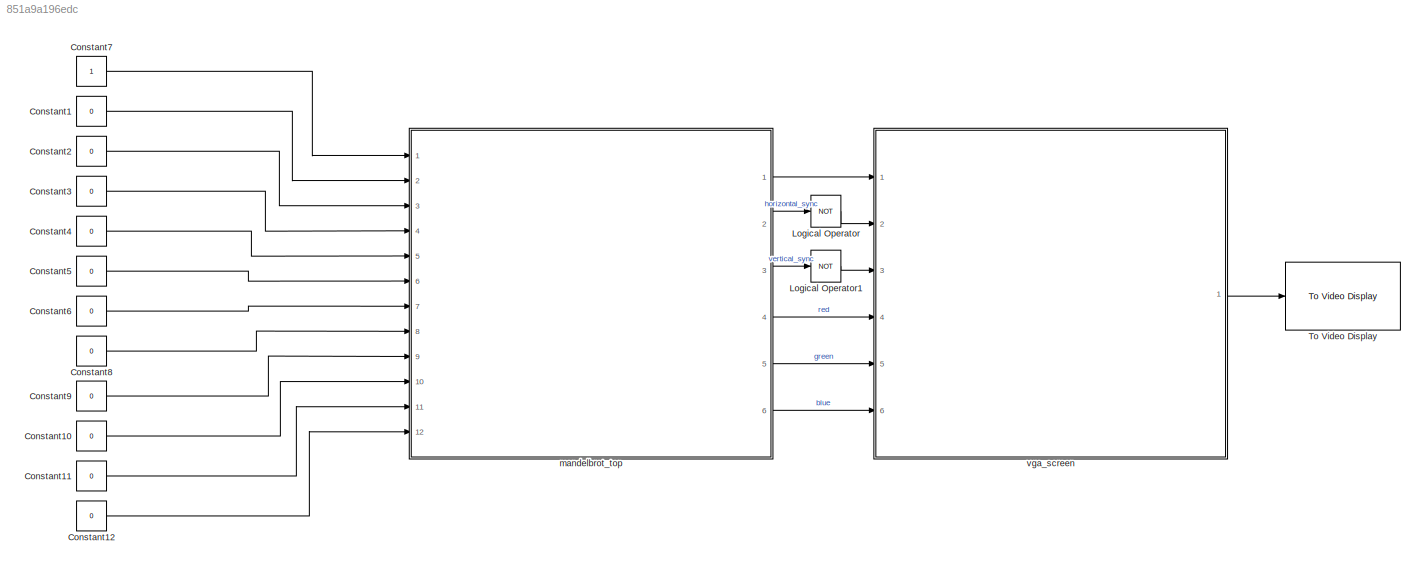
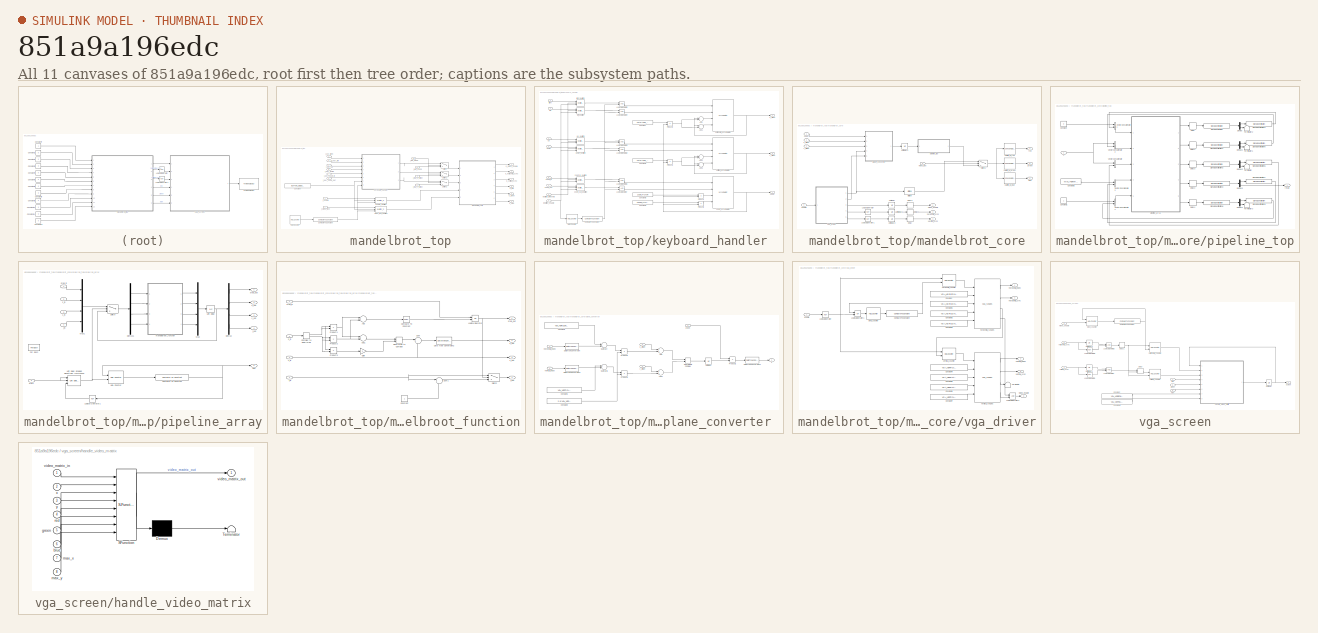
[diagram: thumbnail index - all 11 canvases of the model, root first then tree order]
MODEL slx_851a9a196edc
KIND model
CONFIG AbsTol = auto
CONFIG EnableMultiTasking = on
CONFIG FixedStep = 0.5*Ts
CONFIG MaxStep = auto
CONFIG MinStep = auto
CONFIG RelTol = 1e-3
CONFIG SampleTimeConstraint = Unconstrained
CONFIG Solver = FixedStepDiscrete
CONFIG SolverName = FixedStepDiscrete
CONFIG StartTime = 0.0
CONFIG StopTime = 33.5e-3
BLOCK [Constant] Constant1
  OutDataTypeStr = boolean
  SampleTime = Ts
  Value = 0
BLOCK [Constant] Constant10
  OutDataTypeStr = boolean
  SampleTime = Ts
  Value = 0
BLOCK [Constant] Constant11
  OutDataTypeStr = boolean
  SampleTime = Ts
  Value = 0
BLOCK [Constant] Constant12
  OutDataTypeStr = boolean
  SampleTime = Ts
  Value = 0
BLOCK [Constant] Constant2
  OutDataTypeStr = boolean
  SampleTime = Ts
  Value = 0
BLOCK [Constant] Constant3
  OutDataTypeStr = boolean
  SampleTime = Ts
  Value = 0
BLOCK [Constant] Constant4
  OutDataTypeStr = boolean
  SampleTime = Ts
  Value = 0
BLOCK [Constant] Constant5
  OutDataTypeStr = boolean
  SampleTime = Ts
  Value = 0
BLOCK [Constant] Constant6
  OutDataTypeStr = boolean
  SampleTime = Ts
  Value = 0
BLOCK [Constant] Constant7
  OutDataTypeStr = boolean
  SampleTime = Ts
BLOCK [Constant] Constant8
  OutDataTypeStr = boolean
  SampleTime = Ts
  Value = 0
BLOCK [Constant] Constant9
  OutDataTypeStr = boolean
  SampleTime = Ts
  Value = 0
BLOCK [Logic] Logical Operator
  AllPortsSameDT = off
  IconShape = distinctive
  Operator = NOT
  OutDataTypeStr = boolean
  Ports = [1, 1]
BLOCK [Logic] Logical Operator1
  AllPortsSameDT = off
  IconShape = distinctive
  Operator = NOT
  OutDataTypeStr = boolean
  Ports = [1, 1]
BLOCK [Reference] To Video Display  REF=visionsinks/To Video Display
  Ports = [1]
  SourceBlock = visionsinks/To Video Display
  SourceProductBaseCode = VP
  SourceProductName = Computer Vision Toolbox
  SourceType = To Video Display
BLOCK [SubSystem] mandelbrot_top
  Ports = [12, 6]
  RequestExecContextInheritance = off
BLOCK [Reference] mandelbrot_top/Compare To Constant  REF=simulink/Logic and Bit
Operations/Compare
To Constant
  Ports = [1, 1]
  SourceBlock = simulink/Logic and Bit\nOperations/Compare\nTo Constant
  SourceProductBaseCode = SL
  SourceProductName = Simulink
  SourceType = Compare To Constant
BLOCK [Constant] mandelbrot_top/Constant
  OutDataTypeStr = uint8
  SampleTime = -1
  Value = BUTTON_DEBOUNCE
BLOCK [Reference] mandelbrot_top/HDL Counter  REF=hdlsllib/Sources/HDL Counter
  Ports = [0, 1]
  SourceBlock = hdlsllib/Sources/HDL Counter
  SourceProductBaseCode = SL
  SourceProductName = Simulink
  SourceType = HDL Counter
BLOCK [Switch] mandelbrot_top/Switch
  Criteria = u2 ~= 0
  InputSameDT = off
  SaturateOnIntegerOverflow = off
BLOCK [Switch] mandelbrot_top/Switch1
  Criteria = u2 ~= 0
  InputSameDT = off
  SaturateOnIntegerOverflow = off
BLOCK [Switch] mandelbrot_top/Switch2
  Criteria = u2 ~= 0
  InputSameDT = off
  SaturateOnIntegerOverflow = off
BLOCK [Reference] mandelbrot_top/enable_deglitch  REF=mandelbrot_library/deglitch_filter  (lib defined in slx_139f1bcd48ff)
  Ports = [3, 1]
  SourceBlock = mandelbrot_library/deglitch_filter
  SourceType = SubSystem
BLOCK [Inport] mandelbrot_top/i_enable
  IconDisplay = Port number
BLOCK [Inport] mandelbrot_top/i_key_down
  IconDisplay = Port number
  Port = 6
BLOCK [Inport] mandelbrot_top/i_key_left
  IconDisplay = Port number
  Port = 4
BLOCK [Inport] mandelbrot_top/i_key_right
  IconDisplay = Port number
  Port = 3
BLOCK [Inport] mandelbrot_top/i_key_up
  IconDisplay = Port number
  Port = 5
BLOCK [Inport] mandelbrot_top/i_key_zoom_in
  IconDisplay = Port number
  Port = 7
BLOCK [Inport] mandelbrot_top/i_key_zoom_out
  IconDisplay = Port number
  Port = 8
BLOCK [Inport] mandelbrot_top/i_reg_mode
  IconDisplay = Port number
  Port = 12
BLOCK [Inport] mandelbrot_top/i_reg_x_offset
  IconDisplay = Port number
  Port = 9
BLOCK [Inport] mandelbrot_top/i_reg_y_offset
  IconDisplay = Port number
  Port = 11
BLOCK [Inport] mandelbrot_top/i_reg_zoom
  IconDisplay = Port number
  Port = 10
BLOCK [Inport] mandelbrot_top/i_video_test
  IconDisplay = Port number
  Port = 2
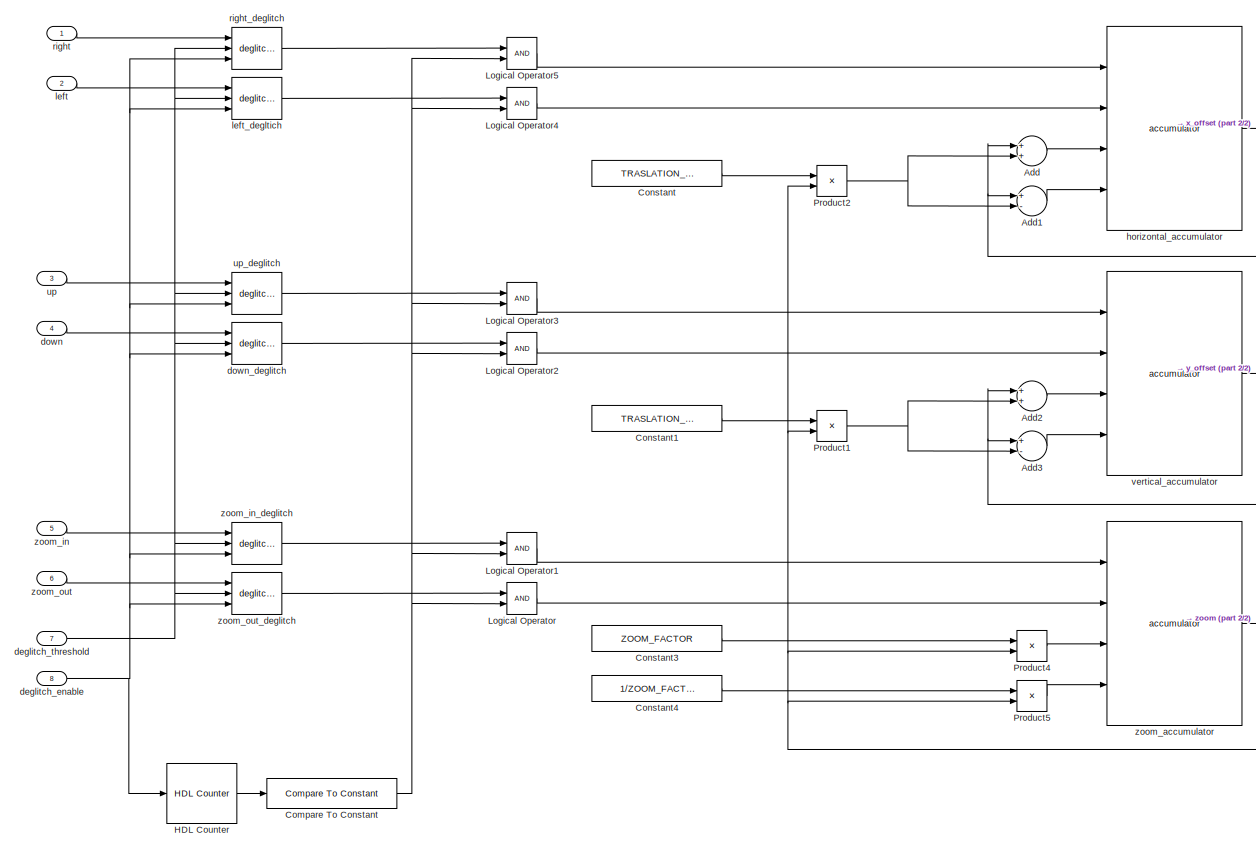
[diagram: mandelbrot_top/keyboard_handler  - part 1/2, most of the canvas]
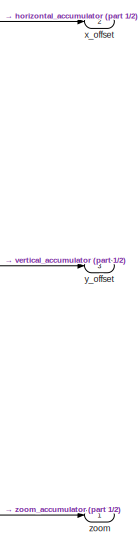
[diagram: mandelbrot_top/keyboard_handler  - part 2/2, middle right region]
BLOCK [SubSystem] mandelbrot_top/keyboard_handler 
  Ports = [8, 3]
  RequestExecContextInheritance = off
BLOCK [Sum] mandelbrot_top/keyboard_handler /Add
  AccumDataTypeStr = Inherit: Same as first input
  InputSameDT = off
  OutDataTypeStr = Inherit: Inherit via internal rule
  Ports = [2, 1]
  SaturateOnIntegerOverflow = off
BLOCK [Sum] mandelbrot_top/keyboard_handler /Add1
  AccumDataTypeStr = Inherit: Same as first input
  InputSameDT = off
  Inputs = +-
  OutDataTypeStr = Inherit: Inherit via internal rule
  Ports = [2, 1]
  SaturateOnIntegerOverflow = off
BLOCK [Sum] mandelbrot_top/keyboard_handler /Add2
  AccumDataTypeStr = Inherit: Same as first input
  InputSameDT = off
  OutDataTypeStr = Inherit: Inherit via internal rule
  Ports = [2, 1]
  SaturateOnIntegerOverflow = off
BLOCK [Sum] mandelbrot_top/keyboard_handler /Add3
  AccumDataTypeStr = Inherit: Same as first input
  InputSameDT = off
  Inputs = +-
  Ports = [2, 1]
  SaturateOnIntegerOverflow = off
BLOCK [Reference] mandelbrot_top/keyboard_handler /Compare To Constant  REF=simulink/Logic and Bit
Operations/Compare
To Constant
  Ports = [1, 1]
  SourceBlock = simulink/Logic and Bit\nOperations/Compare\nTo Constant
  SourceProductBaseCode = SL
  SourceProductName = Simulink
  SourceType = Compare To Constant
BLOCK [Constant] mandelbrot_top/keyboard_handler /Constant
  OutDataTypeStr = Inherit: Inherit via back propagation
  SampleTime = -1
  Value = TRASLATION_FACTOR
BLOCK [Constant] mandelbrot_top/keyboard_handler /Constant1
  OutDataTypeStr = Z_BUS_TYPE
  SampleTime = -1
  Value = TRASLATION_FACTOR
BLOCK [Constant] mandelbrot_top/keyboard_handler /Constant3
  OutDataTypeStr = Z_BUS_TYPE
  SampleTime = -1
  Value = ZOOM_FACTOR
BLOCK [Constant] mandelbrot_top/keyboard_handler /Constant4
  OutDataTypeStr = Z_BUS_TYPE
  SampleTime = -1
  Value = 1/ZOOM_FACTOR
BLOCK [Reference] mandelbrot_top/keyboard_handler /HDL Counter  REF=hdlsllib/Sources/HDL Counter
  Ports = [1, 1]
  SourceBlock = hdlsllib/Sources/HDL Counter
  SourceProductBaseCode = SL
  SourceProductName = Simulink
  SourceType = HDL Counter
BLOCK [Logic] mandelbrot_top/keyboard_handler /Logical Operator
  AllPortsSameDT = off
  IconShape = distinctive
  OutDataTypeStr = boolean
  Ports = [2, 1]
BLOCK [Logic] mandelbrot_top/keyboard_handler /Logical Operator1
  AllPortsSameDT = off
  IconShape = distinctive
  OutDataTypeStr = boolean
  Ports = [2, 1]
BLOCK [Logic] mandelbrot_top/keyboard_handler /Logical Operator2
  AllPortsSameDT = off
  IconShape = distinctive
  OutDataTypeStr = boolean
  Ports = [2, 1]
BLOCK [Logic] mandelbrot_top/keyboard_handler /Logical Operator3
  AllPortsSameDT = off
  IconShape = distinctive
  OutDataTypeStr = boolean
  Ports = [2, 1]
BLOCK [Logic] mandelbrot_top/keyboard_handler /Logical Operator4
  AllPortsSameDT = off
  IconShape = distinctive
  OutDataTypeStr = boolean
  Ports = [2, 1]
BLOCK [Logic] mandelbrot_top/keyboard_handler /Logical Operator5
  AllPortsSameDT = off
  IconShape = distinctive
  OutDataTypeStr = boolean
  Ports = [2, 1]
BLOCK [Product] mandelbrot_top/keyboard_handler /Product1
  InputSameDT = off
  Ports = [2, 1]
  RndMeth = Floor
  SaturateOnIntegerOverflow = off
BLOCK [Product] mandelbrot_top/keyboard_handler /Product2
  InputSameDT = off
  Ports = [2, 1]
  RndMeth = Floor
  SaturateOnIntegerOverflow = off
BLOCK [Product] mandelbrot_top/keyboard_handler /Product4
  InputSameDT = off
  Ports = [2, 1]
  RndMeth = Floor
  SaturateOnIntegerOverflow = off
BLOCK [Product] mandelbrot_top/keyboard_handler /Product5
  InputSameDT = off
  Ports = [2, 1]
  RndMeth = Floor
  SaturateOnIntegerOverflow = off
BLOCK [Inport] mandelbrot_top/keyboard_handler /deglitch_enable
  IconDisplay = Port number
  Port = 8
BLOCK [Inport] mandelbrot_top/keyboard_handler /deglitch_threshold 
  IconDisplay = Port number
  Port = 7
BLOCK [Inport] mandelbrot_top/keyboard_handler /down
  IconDisplay = Port number
  Port = 4
BLOCK [Reference] mandelbrot_top/keyboard_handler /down_deglitch   REF=mandelbrot_library/deglitch_filter  (lib defined in slx_139f1bcd48ff)
  Ports = [3, 1]
  SourceBlock = mandelbrot_library/deglitch_filter
  SourceType = SubSystem
BLOCK [Reference] mandelbrot_top/keyboard_handler /horizontal_accumulator  REF=mandelbrot_library/accumulator  (lib defined in slx_139f1bcd48ff)
  Ports = [4, 1]
  SourceBlock = mandelbrot_library/accumulator
  SourceType = SubSystem
BLOCK [Inport] mandelbrot_top/keyboard_handler /left
  IconDisplay = Port number
  Port = 2
BLOCK [Reference] mandelbrot_top/keyboard_handler /left_degltich  REF=mandelbrot_library/deglitch_filter  (lib defined in slx_139f1bcd48ff)
  Ports = [3, 1]
  SourceBlock = mandelbrot_library/deglitch_filter
  SourceType = SubSystem
BLOCK [Inport] mandelbrot_top/keyboard_handler /right
  IconDisplay = Port number
BLOCK [Reference] mandelbrot_top/keyboard_handler /right_deglitch  REF=mandelbrot_library/deglitch_filter  (lib defined in slx_139f1bcd48ff)
  Ports = [3, 1]
  SourceBlock = mandelbrot_library/deglitch_filter
  SourceType = SubSystem
BLOCK [Inport] mandelbrot_top/keyboard_handler /up
  IconDisplay = Port number
  Port = 3
BLOCK [Reference] mandelbrot_top/keyboard_handler /up_deglitch  REF=mandelbrot_library/deglitch_filter  (lib defined in slx_139f1bcd48ff)
  Ports = [3, 1]
  SourceBlock = mandelbrot_library/deglitch_filter
  SourceType = SubSystem
BLOCK [Reference] mandelbrot_top/keyboard_handler /vertical_accumulator  REF=mandelbrot_library/accumulator  (lib defined in slx_139f1bcd48ff)
  Ports = [4, 1]
  SourceBlock = mandelbrot_library/accumulator
  SourceType = SubSystem
BLOCK [Outport] mandelbrot_top/keyboard_handler /x_offset
  IconDisplay = Port number
  OutDataTypeStr = Z_BUS_TYPE
  Port = 2
BLOCK [Outport] mandelbrot_top/keyboard_handler /y_offset
  IconDisplay = Port number
  OutDataTypeStr = Z_BUS_TYPE
  Port = 3
BLOCK [Outport] mandelbrot_top/keyboard_handler /zoom
  IconDisplay = Port number
  OutDataTypeStr = Z_BUS_TYPE
BLOCK [Reference] mandelbrot_top/keyboard_handler /zoom_accumulator  REF=mandelbrot_library/accumulator  (lib defined in slx_139f1bcd48ff)
  Ports = [4, 1]
  SourceBlock = mandelbrot_library/accumulator
  SourceType = SubSystem
BLOCK [Inport] mandelbrot_top/keyboard_handler /zoom_in
  IconDisplay = Port number
  Port = 5
BLOCK [Reference] mandelbrot_top/keyboard_handler /zoom_in_deglitch  REF=mandelbrot_library/deglitch_filter  (lib defined in slx_139f1bcd48ff)
  Ports = [3, 1]
  SourceBlock = mandelbrot_library/deglitch_filter
  SourceType = SubSystem
BLOCK [Inport] mandelbrot_top/keyboard_handler /zoom_out
  IconDisplay = Port number
  Port = 6
BLOCK [Reference] mandelbrot_top/keyboard_handler /zoom_out_deglitch  REF=mandelbrot_library/deglitch_filter  (lib defined in slx_139f1bcd48ff)
  Ports = [3, 1]
  SourceBlock = mandelbrot_library/deglitch_filter
  SourceType = SubSystem
BLOCK [SubSystem] mandelbrot_top/mandelbrot_core
  Ports = [5, 6]
  RequestExecContextInheritance = off
BLOCK [Reference] mandelbrot_top/mandelbrot_core/Bit Slice  REF=hdlsllib/Logic and Bit
Operations/Bit Slice
  Ports = [1, 1]
  SourceBlock = hdlsllib/Logic and Bit\nOperations/Bit Slice
  SourceProductBaseCode = SL
  SourceProductName = Simulink
  SourceType = Bit Slice
BLOCK [Delay] mandelbrot_top/mandelbrot_core/Delay
  DelayLength = MAX_ITERATIONS
  InputPortMap = u0
  Ports = [1, 1]
BLOCK [Delay] mandelbrot_top/mandelbrot_core/Delay1
  DelayLength = MAX_ITERATIONS
  InputPortMap = u0
  Ports = [1, 1]
BLOCK [Delay] mandelbrot_top/mandelbrot_core/Delay2
  DelayLength = MAX_ITERATIONS
  InputPortMap = u0
  Ports = [1, 1]
BLOCK [Logic] mandelbrot_top/mandelbrot_core/Logical Operator
  AllPortsSameDT = off
  IconShape = distinctive
  Operator = NOT
  OutDataTypeStr = boolean
  Ports = [1, 1]
BLOCK [Logic] mandelbrot_top/mandelbrot_core/Logical Operator1
  AllPortsSameDT = off
  IconShape = distinctive
  Operator = NOT
  OutDataTypeStr = boolean
  Ports = [1, 1]
BLOCK [Switch] mandelbrot_top/mandelbrot_core/Switch1
  Criteria = u2 ~= 0
  InputSameDT = off
  SaturateOnIntegerOverflow = off
BLOCK [UnitDelay] mandelbrot_top/mandelbrot_core/Unit Delay
  HasFrameUpgradeWarning = on
  SampleTime = -1
BLOCK [UnitDelay] mandelbrot_top/mandelbrot_core/Unit Delay1
  HasFrameUpgradeWarning = on
  SampleTime = -1
BLOCK [UnitDelay] mandelbrot_top/mandelbrot_core/Unit Delay2
  HasFrameUpgradeWarning = on
  SampleTime = -1
BLOCK [UnitDelay] mandelbrot_top/mandelbrot_core/Unit Delay3
  HasFrameUpgradeWarning = on
  SampleTime = -1
BLOCK [Outport] mandelbrot_top/mandelbrot_core/blue
  IconDisplay = Port number
  Port = 6
  VectorParamsAs1DForOutWhenUnconnected = off
BLOCK [Inport] mandelbrot_top/mandelbrot_core/enable
  IconDisplay = Port number
  Port = 4
BLOCK [Outport] mandelbrot_top/mandelbrot_core/green
  IconDisplay = Port number
  Port = 5
  VectorParamsAs1DForOutWhenUnconnected = off
BLOCK [Outport] mandelbrot_top/mandelbrot_core/horizontal_sync
  IconDisplay = Port number
  Port = 2
  VectorParamsAs1DForOutWhenUnconnected = off
BLOCK [LookupNDDirect] mandelbrot_top/mandelbrot_core/palette_lut_blue 
  DiagnosticForOutOfRangeInput = Error
  NumberOfTableDimensions = 1
  Ports = [1, 1]
  Table = LUT_BLUE
BLOCK [LookupNDDirect] mandelbrot_top/mandelbrot_core/palette_lut_green 
  DiagnosticForOutOfRangeInput = Error
  NumberOfTableDimensions = 1
  Ports = [1, 1]
  Table = LUT_GREEN
BLOCK [LookupNDDirect] mandelbrot_top/mandelbrot_core/palette_lut_red 
  DiagnosticForOutOfRangeInput = Error
  NumberOfTableDimensions = 1
  Ports = [1, 1]
  Table = LUT_RED
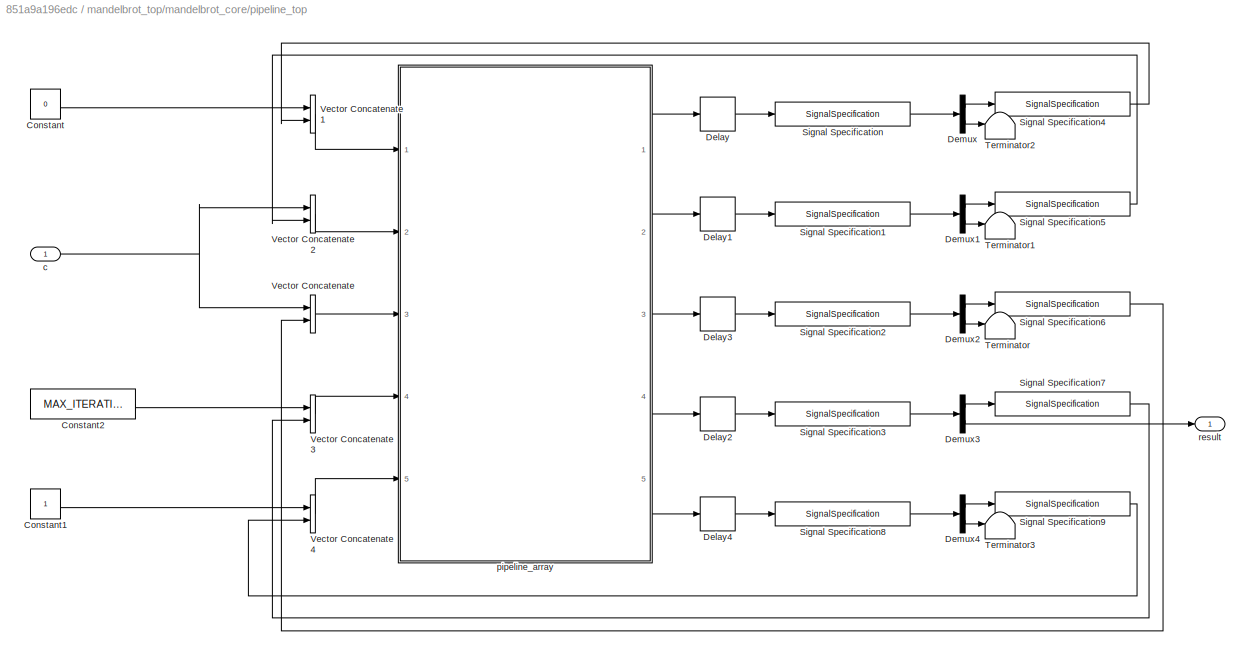
BLOCK [SubSystem] mandelbrot_top/mandelbrot_core/pipeline_top
  Ports = [1, 1]
  RequestExecContextInheritance = off
BLOCK [Constant] mandelbrot_top/mandelbrot_core/pipeline_top/Constant
  OutDataTypeStr = boolean
  SampleTime = -1
  Value = 0
BLOCK [Constant] mandelbrot_top/mandelbrot_core/pipeline_top/Constant1
  OutDataTypeStr = boolean
  SampleTime = -1
BLOCK [Constant] mandelbrot_top/mandelbrot_core/pipeline_top/Constant2
  OutDataTypeStr = fixdt(0,7)
  SampleTime = -1
  Value = MAX_ITERATIONS-1
BLOCK [Delay] mandelbrot_top/mandelbrot_core/pipeline_top/Delay
  DelayLength = 1
  InitialCondition = 0
  InputPortMap = u0
  Ports = [1, 1]
  SampleTime = Ts
BLOCK [Delay] mandelbrot_top/mandelbrot_core/pipeline_top/Delay1
  DelayLength = 1
  InitialCondition = 0
  InputPortMap = u0
  Ports = [1, 1]
  SampleTime = Ts
BLOCK [Delay] mandelbrot_top/mandelbrot_core/pipeline_top/Delay2
  DelayLength = 1
  InitialCondition = 0
  InputPortMap = u0
  Ports = [1, 1]
  SampleTime = Ts
BLOCK [Delay] mandelbrot_top/mandelbrot_core/pipeline_top/Delay3
  DelayLength = 1
  InitialCondition = 0
  InputPortMap = u0
  Ports = [1, 1]
  SampleTime = Ts
BLOCK [Delay] mandelbrot_top/mandelbrot_core/pipeline_top/Delay4
  DelayLength = 1
  InitialCondition = 0
  InputPortMap = u0
  Ports = [1, 1]
  SampleTime = Ts
BLOCK [Demux] mandelbrot_top/mandelbrot_core/pipeline_top/Demux
  DisplayOption = bar
  Outputs = 2
  Ports = [1, 2]
BLOCK [Demux] mandelbrot_top/mandelbrot_core/pipeline_top/Demux1
  DisplayOption = bar
  Outputs = 2
  Ports = [1, 2]
BLOCK [Demux] mandelbrot_top/mandelbrot_core/pipeline_top/Demux2
  DisplayOption = bar
  Outputs = 2
  Ports = [1, 2]
BLOCK [Demux] mandelbrot_top/mandelbrot_core/pipeline_top/Demux3
  DisplayOption = bar
  Outputs = 2
  Ports = [1, 2]
BLOCK [Demux] mandelbrot_top/mandelbrot_core/pipeline_top/Demux4
  DisplayOption = bar
  Outputs = 2
  Ports = [1, 2]
BLOCK [SignalSpecification] mandelbrot_top/mandelbrot_core/pipeline_top/Signal Specification
  Dimensions = PIPELINE_SIZE
BLOCK [SignalSpecification] mandelbrot_top/mandelbrot_core/pipeline_top/Signal Specification1
  Dimensions = PIPELINE_SIZE
BLOCK [SignalSpecification] mandelbrot_top/mandelbrot_core/pipeline_top/Signal Specification2
  Dimensions = PIPELINE_SIZE
BLOCK [SignalSpecification] mandelbrot_top/mandelbrot_core/pipeline_top/Signal Specification3
  Dimensions = PIPELINE_SIZE
BLOCK [SignalSpecification] mandelbrot_top/mandelbrot_core/pipeline_top/Signal Specification4
  Dimensions = PIPELINE_SIZE-1
BLOCK [SignalSpecification] mandelbrot_top/mandelbrot_core/pipeline_top/Signal Specification5
  Dimensions = PIPELINE_SIZE-1
BLOCK [SignalSpecification] mandelbrot_top/mandelbrot_core/pipeline_top/Signal Specification6
  Dimensions = PIPELINE_SIZE-1
BLOCK [SignalSpecification] mandelbrot_top/mandelbrot_core/pipeline_top/Signal Specification7
  Dimensions = PIPELINE_SIZE-1
BLOCK [SignalSpecification] mandelbrot_top/mandelbrot_core/pipeline_top/Signal Specification8
  Dimensions = PIPELINE_SIZE
BLOCK [SignalSpecification] mandelbrot_top/mandelbrot_core/pipeline_top/Signal Specification9
  Dimensions = PIPELINE_SIZE-1
BLOCK [Terminator] mandelbrot_top/mandelbrot_core/pipeline_top/Terminator
BLOCK [Terminator] mandelbrot_top/mandelbrot_core/pipeline_top/Terminator1
BLOCK [Terminator] mandelbrot_top/mandelbrot_core/pipeline_top/Terminator2
BLOCK [Terminator] mandelbrot_top/mandelbrot_core/pipeline_top/Terminator3
BLOCK [Concatenate] mandelbrot_top/mandelbrot_core/pipeline_top/Vector Concatenate
  Ports = [2, 1]
BLOCK [Concatenate] mandelbrot_top/mandelbrot_core/pipeline_top/Vector Concatenate1
  Ports = [2, 1]
BLOCK [Concatenate] mandelbrot_top/mandelbrot_core/pipeline_top/Vector Concatenate2
  Ports = [2, 1]
BLOCK [Concatenate] mandelbrot_top/mandelbrot_core/pipeline_top/Vector Concatenate3
  Ports = [2, 1]
BLOCK [Concatenate] mandelbrot_top/mandelbrot_core/pipeline_top/Vector Concatenate4
  Ports = [2, 1]
BLOCK [Inport] mandelbrot_top/mandelbrot_core/pipeline_top/c
  IconDisplay = Port number
BLOCK [SubSystem] mandelbrot_top/mandelbrot_core/pipeline_top/pipeline_array
  Ports = [5, 5]
  RequestExecContextInheritance = off
BLOCK [Reference] mandelbrot_top/mandelbrot_core/pipeline_top/pipeline_array/Compare To Constant  REF=simulink/Logic and Bit
Operations/Compare
To Constant
  Ports = [1, 1]
  SourceBlock = simulink/Logic and Bit\nOperations/Compare\nTo Constant
  SourceProductBaseCode = SL
  SourceProductName = Simulink
  SourceType = Compare To Constant
BLOCK [Demux] mandelbrot_top/mandelbrot_core/pipeline_top/pipeline_array/Demux
  DisplayOption = bar
  Ports = [1, 4]
BLOCK [Demux] mandelbrot_top/mandelbrot_core/pipeline_top/pipeline_array/Demux1
  DisplayOption = bar
  Ports = [1, 4]
BLOCK [ForEach] mandelbrot_top/mandelbrot_core/pipeline_top/pipeline_array/For Each
  DisableCoverage = on
  Ports = []
BLOCK [Reference] mandelbrot_top/mandelbrot_core/pipeline_top/pipeline_array/HDL Counter  REF=hdlsllib/Sources/HDL Counter
  Ports = [2, 1]
  SourceBlock = hdlsllib/Sources/HDL Counter
  SourceProductBaseCode = SL
  SourceProductName = Simulink
  SourceType = HDL Counter
BLOCK [Logic] mandelbrot_top/mandelbrot_core/pipeline_top/pipeline_array/Logical Operator1
  AllPortsSameDT = off
  IconShape = distinctive
  Operator = NOT
  OutDataTypeStr = boolean
  Ports = [1, 1]
BLOCK [Mux] mandelbrot_top/mandelbrot_core/pipeline_top/pipeline_array/Mux
  DisplayOption = bar
  Ports = [4, 1]
BLOCK [Mux] mandelbrot_top/mandelbrot_core/pipeline_top/pipeline_array/Mux1
  DisplayOption = bar
  Ports = [4, 1]
BLOCK [Switch] mandelbrot_top/mandelbrot_core/pipeline_top/pipeline_array/Switch
  Criteria = u2 ~= 0
  InputSameDT = off
  SaturateOnIntegerOverflow = off
BLOCK [UnitDelay] mandelbrot_top/mandelbrot_core/pipeline_top/pipeline_array/Unit Delay
  HasFrameUpgradeWarning = on
  SampleTime = -1
BLOCK [Reference] mandelbrot_top/mandelbrot_core/pipeline_top/pipeline_array/Unit Delay Enabled Resettable Synchronous  REF=hdlsllib/Discrete/Unit Delay Enabled Resettable
Synchronous
  Ports = [3, 1]
  SourceBlock = hdlsllib/Discrete/Unit Delay Enabled Resettable\nSynchronous
  SourceProductBaseCode = SL
  SourceProductName = Simulink
  SourceType = Unit Delay Enabled Resettable Synchronous
BLOCK [Inport] mandelbrot_top/mandelbrot_core/pipeline_top/pipeline_array/c_in
  IconDisplay = Port number
  Partition = on
  PartitionDimension = 1
  PartitionOffset = 0
  PartitionWidth = 1
  Port = 3
BLOCK [Outport] mandelbrot_top/mandelbrot_core/pipeline_top/pipeline_array/c_out
  ConcatenationDimension = 1
  IconDisplay = Port number
  Port = 3
  VectorParamsAs1DForOutWhenUnconnected = off
BLOCK [Outport] mandelbrot_top/mandelbrot_core/pipeline_top/pipeline_array/eoc
  ConcatenationDimension = 1
  IconDisplay = Port number
  Port = 5
  VectorParamsAs1DForOutWhenUnconnected = off
BLOCK [Inport] mandelbrot_top/mandelbrot_core/pipeline_top/pipeline_array/i_in
  IconDisplay = Port number
  Partition = on
  PartitionDimension = 1
  PartitionOffset = 0
  PartitionWidth = 1
  Port = 4
BLOCK [Outport] mandelbrot_top/mandelbrot_core/pipeline_top/pipeline_array/i_out
  ConcatenationDimension = 1
  IconDisplay = Port number
  Port = 4
  VectorParamsAs1DForOutWhenUnconnected = off
BLOCK [SubSystem] mandelbrot_top/mandelbrot_core/pipeline_top/pipeline_array/mandelbroot_function
  Ports = [4, 4]
  RequestExecContextInheritance = off
BLOCK [Sum] mandelbrot_top/mandelbrot_core/pipeline_top/pipeline_array/mandelbroot_function/Add
  InputSameDT = off
  OutDataTypeStr = Inherit: Inherit via internal rule
  Ports = [2, 1]
  SaturateOnIntegerOverflow = off
BLOCK [Sum] mandelbrot_top/mandelbrot_core/pipeline_top/pipeline_array/mandelbroot_function/Add1
  InputSameDT = off
  Inputs = +-
  Ports = [2, 1]
  SaturateOnIntegerOverflow = off
BLOCK [Reference] mandelbrot_top/mandelbrot_core/pipeline_top/pipeline_array/mandelbroot_function/Compare To Constant  REF=simulink/Logic and Bit
Operations/Compare
To Constant
  Ports = [1, 1]
  SourceBlock = simulink/Logic and Bit\nOperations/Compare\nTo Constant
  SourceProductBaseCode = SL
  SourceProductName = Simulink
  SourceType = Compare To Constant
BLOCK [ComplexToRealImag] mandelbrot_top/mandelbrot_core/pipeline_top/pipeline_array/mandelbroot_function/Complex to Real-Imag
  Ports = [1, 2]
BLOCK [Constant] mandelbrot_top/mandelbrot_core/pipeline_top/pipeline_array/mandelbroot_function/Constant
  OutDataTypeStr = uint8
  SampleTime = -1
BLOCK [DataTypeConversion] mandelbrot_top/mandelbrot_core/pipeline_top/pipeline_array/mandelbroot_function/Data Type Conversion2
  RndMeth = Floor
  SaturateOnIntegerOverflow = off
BLOCK [Gain] mandelbrot_top/mandelbrot_core/pipeline_top/pipeline_array/mandelbroot_function/Gain
  Gain = 2
  SaturateOnIntegerOverflow = off
BLOCK [Logic] mandelbrot_top/mandelbrot_core/pipeline_top/pipeline_array/mandelbroot_function/Logical Operator
  AllPortsSameDT = off
  IconShape = distinctive
  Operator = OR
  OutDataTypeStr = boolean
  Ports = [2, 1]
BLOCK [Product] mandelbrot_top/mandelbrot_core/pipeline_top/pipeline_array/mandelbroot_function/Product1
  InputSameDT = off
  OutDataTypeStr = Inherit: Inherit via internal rule
  Ports = [2, 1]
  RndMeth = Floor
  SaturateOnIntegerOverflow = off
BLOCK [Product] mandelbrot_top/mandelbrot_core/pipeline_top/pipeline_array/mandelbroot_function/Product2
  InputSameDT = off
  OutDataTypeStr = Inherit: Inherit via internal rule
  Ports = [2, 1]
  RndMeth = Floor
  SaturateOnIntegerOverflow = off
BLOCK [Product] mandelbrot_top/mandelbrot_core/pipeline_top/pipeline_array/mandelbroot_function/Product3
  InputSameDT = off
  OutDataTypeStr = Inherit: Inherit via internal rule
  Ports = [2, 1]
  RndMeth = Floor
  SaturateOnIntegerOverflow = off
BLOCK [RealImagToComplex] mandelbrot_top/mandelbrot_core/pipeline_top/pipeline_array/mandelbroot_function/Real-Imag to Complex
  Ports = [2, 1]
BLOCK [Sum] mandelbrot_top/mandelbrot_core/pipeline_top/pipeline_array/mandelbroot_function/Sum
  IconShape = round
  InputSameDT = off
  Inputs = |++
  Ports = [2, 1]
  SaturateOnIntegerOverflow = off
BLOCK [Sum] mandelbrot_top/mandelbrot_core/pipeline_top/pipeline_array/mandelbroot_function/Sum1
  AccumDataTypeStr = Inherit: Same as first input
  IconShape = round
  InputSameDT = off
  Inputs = |++
  OutDataTypeStr = Inherit: Inherit via internal rule
  Ports = [2, 1]
  SaturateOnIntegerOverflow = off
BLOCK [Switch] mandelbrot_top/mandelbrot_core/pipeline_top/pipeline_array/mandelbroot_function/Switch
  Criteria = u2 ~= 0
  InputSameDT = off
  SaturateOnIntegerOverflow = off
BLOCK [Inport] mandelbrot_top/mandelbrot_core/pipeline_top/pipeline_array/mandelbroot_function/c_in
  IconDisplay = Port number
  Port = 3
BLOCK [Outport] mandelbrot_top/mandelbrot_core/pipeline_top/pipeline_array/mandelbroot_function/c_out
  IconDisplay = Port number
  Port = 3
  VectorParamsAs1DForOutWhenUnconnected = off
BLOCK [Inport] mandelbrot_top/mandelbrot_core/pipeline_top/pipeline_array/mandelbroot_function/i_in
  IconDisplay = Port number
  Port = 4
BLOCK [Outport] mandelbrot_top/mandelbrot_core/pipeline_top/pipeline_array/mandelbroot_function/i_out
  IconDisplay = Port number
  Port = 4
  VectorParamsAs1DForOutWhenUnconnected = off
BLOCK [Inport] mandelbrot_top/mandelbrot_core/pipeline_top/pipeline_array/mandelbroot_function/stop_in
  IconDisplay = Port number
BLOCK [Outport] mandelbrot_top/mandelbrot_core/pipeline_top/pipeline_array/mandelbroot_function/stop_out
  IconDisplay = Port number
  VectorParamsAs1DForOutWhenUnconnected = off
BLOCK [Inport] mandelbrot_top/mandelbrot_core/pipeline_top/pipeline_array/mandelbroot_function/z_in
  IconDisplay = Port number
  Port = 2
BLOCK [Outport] mandelbrot_top/mandelbrot_core/pipeline_top/pipeline_array/mandelbroot_function/z_out
  IconDisplay = Port number
  Port = 2
  VectorParamsAs1DForOutWhenUnconnected = off
BLOCK [Inport] mandelbrot_top/mandelbrot_core/pipeline_top/pipeline_array/start
  IconDisplay = Port number
  Partition = on
  PartitionDimension = 1
  PartitionOffset = 0
  PartitionWidth = 1
  Port = 5
BLOCK [Inport] mandelbrot_top/mandelbrot_core/pipeline_top/pipeline_array/stop_in
  IconDisplay = Port number
  Partition = on
  PartitionDimension = 1
  PartitionOffset = 0
  PartitionWidth = 1
BLOCK [Outport] mandelbrot_top/mandelbrot_core/pipeline_top/pipeline_array/stop_out
  ConcatenationDimension = 1
  IconDisplay = Port number
  VectorParamsAs1DForOutWhenUnconnected = off
BLOCK [Inport] mandelbrot_top/mandelbrot_core/pipeline_top/pipeline_array/z_in
  IconDisplay = Port number
  Partition = on
  PartitionDimension = 1
  PartitionOffset = 0
  PartitionWidth = 1
  Port = 2
BLOCK [Outport] mandelbrot_top/mandelbrot_core/pipeline_top/pipeline_array/z_out
  ConcatenationDimension = 1
  IconDisplay = Port number
  Port = 2
  VectorParamsAs1DForOutWhenUnconnected = off
BLOCK [Outport] mandelbrot_top/mandelbrot_core/pipeline_top/result
  IconDisplay = Port number
  VectorParamsAs1DForOutWhenUnconnected = off
BLOCK [SubSystem] mandelbrot_top/mandelbrot_core/plane_converter 
  Ports = [5, 1]
  RequestExecContextInheritance = off
BLOCK [Sum] mandelbrot_top/mandelbrot_core/plane_converter /Add
  InputSameDT = off
  OutDataTypeStr = Inherit: Inherit via internal rule
  Ports = [2, 1]
  SaturateOnIntegerOverflow = off
BLOCK [Sum] mandelbrot_top/mandelbrot_core/plane_converter /Add1
  InputSameDT = off
  OutDataTypeStr = Inherit: Inherit via internal rule
  Ports = [2, 1]
  SaturateOnIntegerOverflow = off
BLOCK [Constant] mandelbrot_top/mandelbrot_core/plane_converter /Constant1
  OutDataTypeStr = fixdt(1,12,0)
  SampleTime = -1
  Value = VGA_VERTICAL_RESOLUTION/2.0
BLOCK [Constant] mandelbrot_top/mandelbrot_core/plane_converter /Constant2
  OutDataTypeStr = Z_BUS_TYPE
  SampleTime = -1
  Value = 2.0/VGA_VERTICAL_RESOLUTION
BLOCK [Constant] mandelbrot_top/mandelbrot_core/plane_converter /Constant4
  OutDataTypeStr = fixdt(1,12,0)
  SampleTime = -1
  Value = VGA_HORIZONTAL_RESOLUTION/2.0
BLOCK [DataTypeConversion] mandelbrot_top/mandelbrot_core/plane_converter /Data Type Conversion
  RndMeth = Floor
  SaturateOnIntegerOverflow = off
BLOCK [DataTypeConversion] mandelbrot_top/mandelbrot_core/plane_converter /Data Type Conversion1
  RndMeth = Floor
  SaturateOnIntegerOverflow = off
BLOCK [DataTypeConversion] mandelbrot_top/mandelbrot_core/plane_converter /Data Type Conversion2
  RndMeth = Floor
  SaturateOnIntegerOverflow = off
BLOCK [Product] mandelbrot_top/mandelbrot_core/plane_converter /Product1
  InputSameDT = off
  OutDataTypeStr = Inherit: Inherit via internal rule
  Ports = [2, 1]
  RndMeth = Floor
  SaturateOnIntegerOverflow = off
BLOCK [Product] mandelbrot_top/mandelbrot_core/plane_converter /Product2
  InputSameDT = off
  OutDataTypeStr = Inherit: Inherit via internal rule
  Ports = [2, 1]
  RndMeth = Floor
  SaturateOnIntegerOverflow = off
BLOCK [Product] mandelbrot_top/mandelbrot_core/plane_converter /Product3
  InputSameDT = off
  OutDataTypeStr = Inherit: Inherit via internal rule
  Ports = [2, 1]
  RndMeth = Floor
  SaturateOnIntegerOverflow = off
BLOCK [RealImagToComplex] mandelbrot_top/mandelbrot_core/plane_converter /Real-Imag to Complex
  Ports = [2, 1]
BLOCK [Sum] mandelbrot_top/mandelbrot_core/plane_converter /Subtract
  InputSameDT = off
  Inputs = -+
  OutDataTypeStr = Inherit: Inherit via internal rule
  Ports = [2, 1]
  SaturateOnIntegerOverflow = off
BLOCK [Sum] mandelbrot_top/mandelbrot_core/plane_converter /Subtract1
  InputSameDT = off
  Inputs = +-
  OutDataTypeStr = Inherit: Inherit via internal rule
  Ports = [2, 1]
  SaturateOnIntegerOverflow = off
BLOCK [UnitDelay] mandelbrot_top/mandelbrot_core/plane_converter /Unit Delay
  HasFrameUpgradeWarning = on
  SampleTime = -1
BLOCK [Outport] mandelbrot_top/mandelbrot_core/plane_converter /c
  IconDisplay = Port number
  OutDataTypeStr = Z_BUS_TYPE
  VectorParamsAs1DForOutWhenUnconnected = off
BLOCK [Inport] mandelbrot_top/mandelbrot_core/plane_converter /horizontal_index 
  IconDisplay = Port number
  Port = 4
BLOCK [Inport] mandelbrot_top/mandelbrot_core/plane_converter /vertical_index 
  IconDisplay = Port number
  Port = 5
BLOCK [Inport] mandelbrot_top/mandelbrot_core/plane_converter /x_offset 
  IconDisplay = Port number
  Port = 2
BLOCK [Inport] mandelbrot_top/mandelbrot_core/plane_converter /y_offset 
  IconDisplay = Port number
  Port = 3
BLOCK [Inport] mandelbrot_top/mandelbrot_core/plane_converter /zoom
  IconDisplay = Port number
BLOCK [Outport] mandelbrot_top/mandelbrot_core/red
  IconDisplay = Port number
  Port = 4
  VectorParamsAs1DForOutWhenUnconnected = off
BLOCK [Outport] mandelbrot_top/mandelbrot_core/vertical_sync
  IconDisplay = Port number
  Port = 3
  VectorParamsAs1DForOutWhenUnconnected = off
BLOCK [SubSystem] mandelbrot_top/mandelbrot_core/vga_driver
  Ports = [1, 5]
  RequestExecContextInheritance = off
BLOCK [Reference] mandelbrot_top/mandelbrot_core/vga_driver/Compare To Constant  REF=simulink/Logic and Bit
Operations/Compare
To Constant
  Ports = [1, 1]
  SourceBlock = simulink/Logic and Bit\nOperations/Compare\nTo Constant
  SourceProductBaseCode = SL
  SourceProductName = Simulink
  SourceType = Compare To Constant
BLOCK [Constant] mandelbrot_top/mandelbrot_core/vga_driver/Constant
  OutDataTypeStr = uint16
  SampleTime = -1
  Value = VGA_HORIZONTAL_RESOLUTION
BLOCK [Constant] mandelbrot_top/mandelbrot_core/vga_driver/Constant1
  OutDataTypeStr = uint16
  SampleTime = -1
  Value = VGA_HORIZONTAL_FRONT_PORCH
BLOCK [Constant] mandelbrot_top/mandelbrot_core/vga_driver/Constant2
  OutDataTypeStr = uint16
  SampleTime = -1
  Value = VGA_HORIZONTAL_SYNC
BLOCK [Constant] mandelbrot_top/mandelbrot_core/vga_driver/Constant3
  OutDataTypeStr = uint16
  SampleTime = -1
  Value = VGA_HORIZONTAL_BACK_PORCH
BLOCK [Constant] mandelbrot_top/mandelbrot_core/vga_driver/Constant4
  OutDataTypeStr = uint16
  SampleTime = -1
  Value = VGA_VERTICAL_RESOLUTION
BLOCK [Constant] mandelbrot_top/mandelbrot_core/vga_driver/Constant5
  OutDataTypeStr = uint16
  SampleTime = -1
  Value = VGA_VERTICAL_FRONT_PORCH
BLOCK [Constant] mandelbrot_top/mandelbrot_core/vga_driver/Constant6
  OutDataTypeStr = uint16
  SampleTime = -1
  Value = VGA_VERTICAL_SYNC
BLOCK [Constant] mandelbrot_top/mandelbrot_core/vga_driver/Constant7
  OutDataTypeStr = uint16
  SampleTime = -1
  Value = VGA_VERTICAL_BACK_PORCH
BLOCK [Logic] mandelbrot_top/mandelbrot_core/vga_driver/Logical Operator
  AllPortsSameDT = off
  IconShape = distinctive
  Operator = NOT
  OutDataTypeStr = boolean
  Ports = [1, 1]
BLOCK [Logic] mandelbrot_top/mandelbrot_core/vga_driver/Logical Operator1
  AllPortsSameDT = off
  IconShape = distinctive
  Operator = OR
  OutDataTypeStr = boolean
  Ports = [2, 1]
BLOCK [Logic] mandelbrot_top/mandelbrot_core/vga_driver/Logical Operator2
  AllPortsSameDT = off
  IconShape = distinctive
  OutDataTypeStr = boolean
  Ports = [2, 1]
BLOCK [Terminator] mandelbrot_top/mandelbrot_core/vga_driver/Terminator
BLOCK [Inport] mandelbrot_top/mandelbrot_core/vga_driver/enable 
  IconDisplay = Port number
BLOCK [Reference] mandelbrot_top/mandelbrot_core/vga_driver/horizontal_counter  REF=hdlsllib/Sources/HDL Counter
  Ports = [2, 1]
  SourceBlock = hdlsllib/Sources/HDL Counter
  SourceProductBaseCode = SL
  SourceProductName = Simulink
  SourceType = HDL Counter
BLOCK [Outport] mandelbrot_top/mandelbrot_core/vga_driver/horizontal_index
  IconDisplay = Port number
  VectorParamsAs1DForOutWhenUnconnected = off
BLOCK [Reference] mandelbrot_top/mandelbrot_core/vga_driver/horizontal_ranges  REF=mandelbrot_library/vga_ranges  (lib defined in slx_139f1bcd48ff)
  Ports = [5, 4]
  SourceBlock = mandelbrot_library/vga_ranges
  SourceType = SubSystem
BLOCK [Outport] mandelbrot_top/mandelbrot_core/vga_driver/horizontal_sync
  IconDisplay = Port number
  OutDataTypeStr = boolean
  Port = 4
  VectorParamsAs1DForOutWhenUnconnected = off
BLOCK [Reference] mandelbrot_top/mandelbrot_core/vga_driver/pixel_counter   REF=hdlsllib/Sources/HDL Counter
  Ports = [1, 1]
  SourceBlock = hdlsllib/Sources/HDL Counter
  SourceProductBaseCode = SL
  SourceProductName = Simulink
  SourceType = HDL Counter
BLOCK [Reference] mandelbrot_top/mandelbrot_core/vga_driver/vertical_counter   REF=hdlsllib/Sources/HDL Counter
  Ports = [2, 1]
  SourceBlock = hdlsllib/Sources/HDL Counter
  SourceProductBaseCode = SL
  SourceProductName = Simulink
  SourceType = HDL Counter
BLOCK [Outport] mandelbrot_top/mandelbrot_core/vga_driver/vertical_index
  IconDisplay = Port number
  Port = 2
  VectorParamsAs1DForOutWhenUnconnected = off
BLOCK [Reference] mandelbrot_top/mandelbrot_core/vga_driver/vertical_ranges   REF=mandelbrot_library/vga_ranges  (lib defined in slx_139f1bcd48ff)
  Ports = [5, 4]
  SourceBlock = mandelbrot_library/vga_ranges
  SourceType = SubSystem
BLOCK [Outport] mandelbrot_top/mandelbrot_core/vga_driver/vertical_sync 
  IconDisplay = Port number
  OutDataTypeStr = boolean
  Port = 5
  VectorParamsAs1DForOutWhenUnconnected = off
BLOCK [Outport] mandelbrot_top/mandelbrot_core/vga_driver/video_enable 
  IconDisplay = Port number
  OutDataTypeStr = boolean
  Port = 3
  VectorParamsAs1DForOutWhenUnconnected = off
BLOCK [Outport] mandelbrot_top/mandelbrot_core/video_enable
  IconDisplay = Port number
  VectorParamsAs1DForOutWhenUnconnected = off
BLOCK [Inport] mandelbrot_top/mandelbrot_core/video_test
  IconDisplay = Port number
  Port = 5
BLOCK [Inport] mandelbrot_top/mandelbrot_core/x_offset 
  IconDisplay = Port number
  Port = 2
BLOCK [Inport] mandelbrot_top/mandelbrot_core/y_offset 
  IconDisplay = Port number
  Port = 3
BLOCK [Inport] mandelbrot_top/mandelbrot_core/zoom
  IconDisplay = Port number
BLOCK [Outport] mandelbrot_top/o_blue
  IconDisplay = Port number
  Port = 6
  VectorParamsAs1DForOutWhenUnconnected = off
BLOCK [Outport] mandelbrot_top/o_green
  IconDisplay = Port number
  Port = 5
  VectorParamsAs1DForOutWhenUnconnected = off
BLOCK [Outport] mandelbrot_top/o_horizontal_sync 
  IconDisplay = Port number
  Port = 2
  VectorParamsAs1DForOutWhenUnconnected = off
BLOCK [Outport] mandelbrot_top/o_red
  IconDisplay = Port number
  Port = 4
  VectorParamsAs1DForOutWhenUnconnected = off
BLOCK [Outport] mandelbrot_top/o_vertical_sync
  IconDisplay = Port number
  Port = 3
  VectorParamsAs1DForOutWhenUnconnected = off
BLOCK [Outport] mandelbrot_top/o_video_enable
  IconDisplay = Port number
  VectorParamsAs1DForOutWhenUnconnected = off
BLOCK [Reference] mandelbrot_top/video_test_deglitch  REF=mandelbrot_library/deglitch_filter  (lib defined in slx_139f1bcd48ff)
  Ports = [3, 1]
  SourceBlock = mandelbrot_library/deglitch_filter
  SourceType = SubSystem
BLOCK [SubSystem] vga_screen
  Ports = [6, 1]
  RequestExecContextInheritance = off
BLOCK [Reference] vga_screen/Compare To Constant  REF=simulink/Logic and Bit
Operations/Compare
To Constant
  Ports = [1, 1]
  SourceBlock = simulink/Logic and Bit\nOperations/Compare\nTo Constant
  SourceProductBaseCode = SL
  SourceProductName = Simulink
  SourceType = Compare To Constant
BLOCK [Constant] vga_screen/Constant
  SampleTime = -1
  Value = VGA_HORIZONTAL_RESOLUTION
BLOCK [Constant] vga_screen/Constant4
  SampleTime = -1
  Value = VGA_VERTICAL_RESOLUTION
BLOCK [Delay] vga_screen/Delay
  DelayLength = VGA_VERTICAL_BACK_PORCH
  InitialCondition = 0
  InputPortMap = u0,e6
  Ports = [2, 1]
  ShowEnablePort = on
BLOCK [Delay] vga_screen/Delay1
  DelayLength = VGA_HORIZONTAL_BACK_PORCH
  InitialCondition = 0
  InputPortMap = u0
  Ports = [1, 1]
BLOCK [Logic] vga_screen/Logical Operator
  AllPortsSameDT = off
  IconShape = distinctive
  OutDataTypeStr = boolean
  Ports = [2, 1]
BLOCK [Logic] vga_screen/Logical Operator1
  AllPortsSameDT = off
  IconShape = distinctive
  Operator = NOT
  OutDataTypeStr = boolean
  Ports = [1, 1]
BLOCK [Logic] vga_screen/Logical Operator2
  AllPortsSameDT = off
  IconShape = distinctive
  OutDataTypeStr = boolean
  Ports = [2, 1]
BLOCK [Logic] vga_screen/Logical Operator3
  AllPortsSameDT = off
  IconShape = distinctive
  Operator = NOT
  OutDataTypeStr = boolean
  Ports = [1, 1]
BLOCK [UnitDelay] vga_screen/Unit Delay
  HasFrameUpgradeWarning = on
  SampleTime = -1
BLOCK [UnitDelay] vga_screen/Unit Delay1
  HasFrameUpgradeWarning = on
  SampleTime = -1
BLOCK [UnitDelay] vga_screen/Unit Delay2
  HasFrameUpgradeWarning = on
  SampleTime = -1
BLOCK [Inport] vga_screen/blue
  IconDisplay = Port number
  Port = 6
BLOCK [Inport] vga_screen/green
  IconDisplay = Port number
  Port = 5
BLOCK [SubSystem] vga_screen/handle_video_matrix
  ErrorFcn = Stateflow.Translate.translate
  PermitHierarchicalResolution = ExplicitOnly
  Ports = [8, 1]
  RequestExecContextInheritance = off
  SFBlockType = MATLAB Function
  TreatAsAtomicUnit = on
BLOCK [Demux] vga_screen/handle_video_matrix/ Demux 
  Outputs = 1
  Ports = [1, 1]
BLOCK [S-Function] vga_screen/handle_video_matrix/ SFunction 
  EnableBusSupport = on
  FunctionName = sf_sfun
  PortCounts = [8 2]
  Ports = [8, 2]
  SFcnIsStateOwnerBlock = off
  SFunctionDeploymentMode = off
  Tag = Stateflow S-Function 5
BLOCK [Terminator] vga_screen/handle_video_matrix/ Terminator 
BLOCK [Inport] vga_screen/handle_video_matrix/blue
  IconDisplay = Port number
  Port = 6
BLOCK [Inport] vga_screen/handle_video_matrix/green
  IconDisplay = Port number
  Port = 5
BLOCK [Inport] vga_screen/handle_video_matrix/max_x
  IconDisplay = Port number
  Port = 7
BLOCK [Inport] vga_screen/handle_video_matrix/max_y
  IconDisplay = Port number
  Port = 8
BLOCK [Inport] vga_screen/handle_video_matrix/red
  IconDisplay = Port number
  Port = 4
BLOCK [Inport] vga_screen/handle_video_matrix/video_matrix_in
  IconDisplay = Port number
BLOCK [Outport] vga_screen/handle_video_matrix/video_matrix_out
  IconDisplay = Port number
  VectorParamsAs1DForOutWhenUnconnected = off
BLOCK [Inport] vga_screen/handle_video_matrix/x
  IconDisplay = Port number
  Port = 2
BLOCK [Inport] vga_screen/handle_video_matrix/y
  IconDisplay = Port number
  Port = 3
BLOCK [Reference] vga_screen/horizontal_counter  REF=hdlsllib/Sources/HDL Counter
  Ports = [2, 1]
  SourceBlock = hdlsllib/Sources/HDL Counter
  SourceProductBaseCode = SL
  SourceProductName = Simulink
  SourceType = HDL Counter
BLOCK [Inport] vga_screen/horizontal_sync 
  IconDisplay = Port number
  Port = 2
BLOCK [Reference] vga_screen/pixel_counter   REF=hdlsllib/Sources/HDL Counter
  Ports = [2, 1]
  SourceBlock = hdlsllib/Sources/HDL Counter
  SourceProductBaseCode = SL
  SourceProductName = Simulink
  SourceType = HDL Counter
BLOCK [Inport] vga_screen/red
  IconDisplay = Port number
  Port = 4
BLOCK [Outport] vga_screen/screen
  IconDisplay = Port number
  PortDimensions = [VGA_VERTICAL_RESOLUTION VGA_HORIZONTAL_RESOLUTION 3]
  VarSizeSig = No
  VectorParamsAs1DForOutWhenUnconnected = off
BLOCK [Reference] vga_screen/vertical_counter  REF=hdlsllib/Sources/HDL Counter
  Ports = [2, 1]
  SourceBlock = hdlsllib/Sources/HDL Counter
  SourceProductBaseCode = SL
  SourceProductName = Simulink
  SourceType = HDL Counter
BLOCK [Inport] vga_screen/vertical_sync 
  IconDisplay = Port number
  Port = 3
BLOCK [Inport] vga_screen/video_enable 
  IconDisplay = Port number
LINE Constant10:1 -> mandelbrot_top:10
LINE Constant11:1 -> mandelbrot_top:11
LINE Constant12:1 -> mandelbrot_top:12
LINE Constant1:1 -> mandelbrot_top:2
LINE Constant2:1 -> mandelbrot_top:3
LINE Constant3:1 -> mandelbrot_top:4
LINE Constant4:1 -> mandelbrot_top:5
LINE Constant5:1 -> mandelbrot_top:6
LINE Constant6:1 -> mandelbrot_top:7
LINE Constant7:1 -> mandelbrot_top:1
LINE Constant8:1 -> mandelbrot_top:8
LINE Constant9:1 -> mandelbrot_top:9
LINE Logical Operator1:1 -> vga_screen:3
LINE Logical Operator:1 -> vga_screen:2
NET mandelbrot_top/Compare To Constant:1 -> mandelbrot_top/enable_deglitch:3, mandelbrot_top/keyboard_handler :8, mandelbrot_top/video_test_deglitch:3
NET mandelbrot_top/Constant:1 -> mandelbrot_top/enable_deglitch:2, mandelbrot_top/keyboard_handler :7, mandelbrot_top/video_test_deglitch:2
LINE mandelbrot_top/HDL Counter:1 -> mandelbrot_top/Compare To Constant:1
LINE mandelbrot_top/Switch1:1 -> mandelbrot_top/mandelbrot_core:2
LINE mandelbrot_top/Switch2:1 -> mandelbrot_top/mandelbrot_core:3
LINE mandelbrot_top/Switch:1 -> mandelbrot_top/mandelbrot_core:1
LINE mandelbrot_top/enable_deglitch:1 -> mandelbrot_top/mandelbrot_core:4
LINE mandelbrot_top/i_enable:1 -> mandelbrot_top/enable_deglitch:1
LINE mandelbrot_top/i_key_down:1 -> mandelbrot_top/keyboard_handler :4
LINE mandelbrot_top/i_key_left:1 -> mandelbrot_top/keyboard_handler :2
LINE mandelbrot_top/i_key_right:1 -> mandelbrot_top/keyboard_handler :1
LINE mandelbrot_top/i_key_up:1 -> mandelbrot_top/keyboard_handler :3
LINE mandelbrot_top/i_key_zoom_in:1 -> mandelbrot_top/keyboard_handler :5
LINE mandelbrot_top/i_key_zoom_out:1 -> mandelbrot_top/keyboard_handler :6
NET mandelbrot_top/i_reg_mode:1 -> mandelbrot_top/Switch1:2, mandelbrot_top/Switch2:2, mandelbrot_top/Switch:2
LINE mandelbrot_top/i_reg_x_offset:1 -> mandelbrot_top/Switch1:3
LINE mandelbrot_top/i_reg_y_offset:1 -> mandelbrot_top/Switch2:3
LINE mandelbrot_top/i_reg_zoom:1 -> mandelbrot_top/Switch:3
LINE mandelbrot_top/i_video_test:1 -> mandelbrot_top/video_test_deglitch:1
LINE mandelbrot_top/keyboard_handler /Add1:1 -> mandelbrot_top/keyboard_handler /horizontal_accumulator:4
LINE mandelbrot_top/keyboard_handler /Add2:1 -> mandelbrot_top/keyboard_handler /vertical_accumulator:3
LINE mandelbrot_top/keyboard_handler /Add3:1 -> mandelbrot_top/keyboard_handler /vertical_accumulator:4
LINE mandelbrot_top/keyboard_handler /Add:1 -> mandelbrot_top/keyboard_handler /horizontal_accumulator:3
NET mandelbrot_top/keyboard_handler /Compare To Constant:1 -> mandelbrot_top/keyboard_handler /Logical Operator1:2, mandelbrot_top/keyboard_handler /Logical Operator2:2, mandelbrot_top/keyboard_handler /Logical Operator3:2, mandelbrot_top/keyboard_handler /Logical Operator4:2, mandelbrot_top/keyboard_handler /Logical Operator5:2, mandelbrot_top/keyboard_handler /Logical Operator:2
LINE mandelbrot_top/keyboard_handler /Constant1:1 -> mandelbrot_top/keyboard_handler /Product1:1
LINE mandelbrot_top/keyboard_handler /Constant3:1 -> mandelbrot_top/keyboard_handler /Product4:1
LINE mandelbrot_top/keyboard_handler /Constant4:1 -> mandelbrot_top/keyboard_handler /Product5:1
LINE mandelbrot_top/keyboard_handler /Constant:1 -> mandelbrot_top/keyboard_handler /Product2:1
LINE mandelbrot_top/keyboard_handler /HDL Counter:1 -> mandelbrot_top/keyboard_handler /Compare To Constant:1
LINE mandelbrot_top/keyboard_handler /Logical Operator1:1 -> mandelbrot_top/keyboard_handler /zoom_accumulator:1
LINE mandelbrot_top/keyboard_handler /Logical Operator2:1 -> mandelbrot_top/keyboard_handler /vertical_accumulator:2
LINE mandelbrot_top/keyboard_handler /Logical Operator3:1 -> mandelbrot_top/keyboard_handler /vertical_accumulator:1
LINE mandelbrot_top/keyboard_handler /Logical Operator4:1 -> mandelbrot_top/keyboard_handler /horizontal_accumulator:2
LINE mandelbrot_top/keyboard_handler /Logical Operator5:1 -> mandelbrot_top/keyboard_handler /horizontal_accumulator:1
LINE mandelbrot_top/keyboard_handler /Logical Operator:1 -> mandelbrot_top/keyboard_handler /zoom_accumulator:2
NET mandelbrot_top/keyboard_handler /Product1:1 -> mandelbrot_top/keyboard_handler /Add2:2, mandelbrot_top/keyboard_handler /Add3:2
NET mandelbrot_top/keyboard_handler /Product2:1 -> mandelbrot_top/keyboard_handler /Add1:2, mandelbrot_top/keyboard_handler /Add:2
LINE mandelbrot_top/keyboard_handler /Product4:1 -> mandelbrot_top/keyboard_handler /zoom_accumulator:3
LINE mandelbrot_top/keyboard_handler /Product5:1 -> mandelbrot_top/keyboard_handler /zoom_accumulator:4
NET mandelbrot_top/keyboard_handler /deglitch_enable:1 -> mandelbrot_top/keyboard_handler /HDL Counter:1, mandelbrot_top/keyboard_handler /down_deglitch :3, mandelbrot_top/keyboard_handler /left_degltich:3, mandelbrot_top/keyboard_handler /right_deglitch:3, mandelbrot_top/keyboard_handler /up_deglitch:3, mandelbrot_top/keyboard_handler /zoom_in_deglitch:3, mandelbrot_top/keyboard_handler /zoom_out_deglitch:3
NET mandelbrot_top/keyboard_handler /deglitch_threshold :1 -> mandelbrot_top/keyboard_handler /down_deglitch :2, mandelbrot_top/keyboard_handler /left_degltich:2, mandelbrot_top/keyboard_handler /right_deglitch:2, mandelbrot_top/keyboard_handler /up_deglitch:2, mandelbrot_top/keyboard_handler /zoom_in_deglitch:2, mandelbrot_top/keyboard_handler /zoom_out_deglitch:2
LINE mandelbrot_top/keyboard_handler /down:1 -> mandelbrot_top/keyboard_handler /down_deglitch :1
LINE mandelbrot_top/keyboard_handler /down_deglitch :1 -> mandelbrot_top/keyboard_handler /Logical Operator2:1
NET mandelbrot_top/keyboard_handler /horizontal_accumulator:1 -> mandelbrot_top/keyboard_handler /Add1:1, mandelbrot_top/keyboard_handler /Add:1, mandelbrot_top/keyboard_handler /x_offset:1
LINE mandelbrot_top/keyboard_handler /left:1 -> mandelbrot_top/keyboard_handler /left_degltich:1
LINE mandelbrot_top/keyboard_handler /left_degltich:1 -> mandelbrot_top/keyboard_handler /Logical Operator4:1
LINE mandelbrot_top/keyboard_handler /right:1 -> mandelbrot_top/keyboard_handler /right_deglitch:1
LINE mandelbrot_top/keyboard_handler /right_deglitch:1 -> mandelbrot_top/keyboard_handler /Logical Operator5:1
LINE mandelbrot_top/keyboard_handler /up:1 -> mandelbrot_top/keyboard_handler /up_deglitch:1
LINE mandelbrot_top/keyboard_handler /up_deglitch:1 -> mandelbrot_top/keyboard_handler /Logical Operator3:1
NET mandelbrot_top/keyboard_handler /vertical_accumulator:1 -> mandelbrot_top/keyboard_handler /Add2:1, mandelbrot_top/keyboard_handler /Add3:1, mandelbrot_top/keyboard_handler /y_offset:1
NET mandelbrot_top/keyboard_handler /zoom_accumulator:1 -> mandelbrot_top/keyboard_handler /Product1:2, mandelbrot_top/keyboard_handler /Product2:2, mandelbrot_top/keyboard_handler /Product4:2, mandelbrot_top/keyboard_handler /Product5:2, mandelbrot_top/keyboard_handler /zoom:1
LINE mandelbrot_top/keyboard_handler /zoom_in:1 -> mandelbrot_top/keyboard_handler /zoom_in_deglitch:1
LINE mandelbrot_top/keyboard_handler /zoom_in_deglitch:1 -> mandelbrot_top/keyboard_handler /Logical Operator1:1
LINE mandelbrot_top/keyboard_handler /zoom_out:1 -> mandelbrot_top/keyboard_handler /zoom_out_deglitch:1
LINE mandelbrot_top/keyboard_handler /zoom_out_deglitch:1 -> mandelbrot_top/keyboard_handler /Logical Operator:1
LINE mandelbrot_top/keyboard_handler :1 -> mandelbrot_top/Switch:1
LINE mandelbrot_top/keyboard_handler :2 -> mandelbrot_top/Switch1:1
LINE mandelbrot_top/keyboard_handler :3 -> mandelbrot_top/Switch2:1
LINE mandelbrot_top/mandelbrot_core/Bit Slice:1 -> mandelbrot_top/mandelbrot_core/Switch1:1
LINE mandelbrot_top/mandelbrot_core/Delay1:1 -> mandelbrot_top/mandelbrot_core/horizontal_sync:1
LINE mandelbrot_top/mandelbrot_core/Delay2:1 -> mandelbrot_top/mandelbrot_core/video_enable:1
LINE mandelbrot_top/mandelbrot_core/Delay:1 -> mandelbrot_top/mandelbrot_core/vertical_sync:1
LINE mandelbrot_top/mandelbrot_core/Logical Operator1:1 -> mandelbrot_top/mandelbrot_core/Unit Delay2:1
LINE mandelbrot_top/mandelbrot_core/Logical Operator:1 -> mandelbrot_top/mandelbrot_core/Unit Delay1:1
NET mandelbrot_top/mandelbrot_core/Switch1:1 -> mandelbrot_top/mandelbrot_core/palette_lut_blue :1, mandelbrot_top/mandelbrot_core/palette_lut_green :1, mandelbrot_top/mandelbrot_core/palette_lut_red :1
LINE mandelbrot_top/mandelbrot_core/Unit Delay1:1 -> mandelbrot_top/mandelbrot_core/Delay1:1
LINE mandelbrot_top/mandelbrot_core/Unit Delay2:1 -> mandelbrot_top/mandelbrot_core/Delay:1
LINE mandelbrot_top/mandelbrot_core/Unit Delay3:1 -> mandelbrot_top/mandelbrot_core/pipeline_top:1
LINE mandelbrot_top/mandelbrot_core/Unit Delay:1 -> mandelbrot_top/mandelbrot_core/Delay2:1
LINE mandelbrot_top/mandelbrot_core/enable:1 -> mandelbrot_top/mandelbrot_core/vga_driver:1
LINE mandelbrot_top/mandelbrot_core/palette_lut_blue :1 -> mandelbrot_top/mandelbrot_core/blue:1
LINE mandelbrot_top/mandelbrot_core/palette_lut_green :1 -> mandelbrot_top/mandelbrot_core/green:1
LINE mandelbrot_top/mandelbrot_core/palette_lut_red :1 -> mandelbrot_top/mandelbrot_core/red:1
LINE mandelbrot_top/mandelbrot_core/pipeline_top/Constant1:1 -> mandelbrot_top/mandelbrot_core/pipeline_top/Vector Concatenate4:1
LINE mandelbrot_top/mandelbrot_core/pipeline_top/Constant2:1 -> mandelbrot_top/mandelbrot_core/pipeline_top/Vector Concatenate3:1
LINE mandelbrot_top/mandelbrot_core/pipeline_top/Constant:1 -> mandelbrot_top/mandelbrot_core/pipeline_top/Vector Concatenate1:1
LINE mandelbrot_top/mandelbrot_core/pipeline_top/Delay1:1 -> mandelbrot_top/mandelbrot_core/pipeline_top/Signal Specification1:1
LINE mandelbrot_top/mandelbrot_core/pipeline_top/Delay2:1 -> mandelbrot_top/mandelbrot_core/pipeline_top/Signal Specification3:1
LINE mandelbrot_top/mandelbrot_core/pipeline_top/Delay3:1 -> mandelbrot_top/mandelbrot_core/pipeline_top/Signal Specification2:1
LINE mandelbrot_top/mandelbrot_core/pipeline_top/Delay4:1 -> mandelbrot_top/mandelbrot_core/pipeline_top/Signal Specification8:1
LINE mandelbrot_top/mandelbrot_core/pipeline_top/Delay:1 -> mandelbrot_top/mandelbrot_core/pipeline_top/Signal Specification:1
LINE mandelbrot_top/mandelbrot_core/pipeline_top/Demux1:1 -> mandelbrot_top/mandelbrot_core/pipeline_top/Signal Specification5:1
LINE mandelbrot_top/mandelbrot_core/pipeline_top/Demux1:2 -> mandelbrot_top/mandelbrot_core/pipeline_top/Terminator1:1
LINE mandelbrot_top/mandelbrot_core/pipeline_top/Demux2:1 -> mandelbrot_top/mandelbrot_core/pipeline_top/Signal Specification6:1
LINE mandelbrot_top/mandelbrot_core/pipeline_top/Demux2:2 -> mandelbrot_top/mandelbrot_core/pipeline_top/Terminator:1
LINE mandelbrot_top/mandelbrot_core/pipeline_top/Demux3:1 -> mandelbrot_top/mandelbrot_core/pipeline_top/Signal Specification7:1
LINE mandelbrot_top/mandelbrot_core/pipeline_top/Demux3:2 -> mandelbrot_top/mandelbrot_core/pipeline_top/result:1
LINE mandelbrot_top/mandelbrot_core/pipeline_top/Demux4:1 -> mandelbrot_top/mandelbrot_core/pipeline_top/Signal Specification9:1
LINE mandelbrot_top/mandelbrot_core/pipeline_top/Demux4:2 -> mandelbrot_top/mandelbrot_core/pipeline_top/Terminator3:1
LINE mandelbrot_top/mandelbrot_core/pipeline_top/Demux:1 -> mandelbrot_top/mandelbrot_core/pipeline_top/Signal Specification4:1
LINE mandelbrot_top/mandelbrot_core/pipeline_top/Demux:2 -> mandelbrot_top/mandelbrot_core/pipeline_top/Terminator2:1
LINE mandelbrot_top/mandelbrot_core/pipeline_top/Signal Specification1:1 -> mandelbrot_top/mandelbrot_core/pipeline_top/Demux1:1
LINE mandelbrot_top/mandelbrot_core/pipeline_top/Signal Specification2:1 -> mandelbrot_top/mandelbrot_core/pipeline_top/Demux2:1
LINE mandelbrot_top/mandelbrot_core/pipeline_top/Signal Specification3:1 -> mandelbrot_top/mandelbrot_core/pipeline_top/Demux3:1
LINE mandelbrot_top/mandelbrot_core/pipeline_top/Signal Specification4:1 -> mandelbrot_top/mandelbrot_core/pipeline_top/Vector Concatenate1:2
LINE mandelbrot_top/mandelbrot_core/pipeline_top/Signal Specification5:1 -> mandelbrot_top/mandelbrot_core/pipeline_top/Vector Concatenate2:2
LINE mandelbrot_top/mandelbrot_core/pipeline_top/Signal Specification6:1 -> mandelbrot_top/mandelbrot_core/pipeline_top/Vector Concatenate:2
LINE mandelbrot_top/mandelbrot_core/pipeline_top/Signal Specification7:1 -> mandelbrot_top/mandelbrot_core/pipeline_top/Vector Concatenate3:2
LINE mandelbrot_top/mandelbrot_core/pipeline_top/Signal Specification8:1 -> mandelbrot_top/mandelbrot_core/pipeline_top/Demux4:1
LINE mandelbrot_top/mandelbrot_core/pipeline_top/Signal Specification9:1 -> mandelbrot_top/mandelbrot_core/pipeline_top/Vector Concatenate4:2
LINE mandelbrot_top/mandelbrot_core/pipeline_top/Signal Specification:1 -> mandelbrot_top/mandelbrot_core/pipeline_top/Demux:1
LINE mandelbrot_top/mandelbrot_core/pipeline_top/Vector Concatenate1:1 -> mandelbrot_top/mandelbrot_core/pipeline_top/pipeline_array:1
LINE mandelbrot_top/mandelbrot_core/pipeline_top/Vector Concatenate2:1 -> mandelbrot_top/mandelbrot_core/pipeline_top/pipeline_array:2
LINE mandelbrot_top/mandelbrot_core/pipeline_top/Vector Concatenate3:1 -> mandelbrot_top/mandelbrot_core/pipeline_top/pipeline_array:4
LINE mandelbrot_top/mandelbrot_core/pipeline_top/Vector Concatenate4:1 -> mandelbrot_top/mandelbrot_core/pipeline_top/pipeline_array:5
LINE mandelbrot_top/mandelbrot_core/pipeline_top/Vector Concatenate:1 -> mandelbrot_top/mandelbrot_core/pipeline_top/pipeline_array:3
NET mandelbrot_top/mandelbrot_core/pipeline_top/c:1 -> mandelbrot_top/mandelbrot_core/pipeline_top/Vector Concatenate2:1, mandelbrot_top/mandelbrot_core/pipeline_top/Vector Concatenate:1
NET mandelbrot_top/mandelbrot_core/pipeline_top/pipeline_array/Compare To Constant:1 -> mandelbrot_top/mandelbrot_core/pipeline_top/pipeline_array/HDL Counter:1, mandelbrot_top/mandelbrot_core/pipeline_top/pipeline_array/Logical Operator1:1, mandelbrot_top/mandelbrot_core/pipeline_top/pipeline_array/eoc:1
LINE mandelbrot_top/mandelbrot_core/pipeline_top/pipeline_array/Demux1:1 -> mandelbrot_top/mandelbrot_core/pipeline_top/pipeline_array/mandelbroot_function:1
LINE mandelbrot_top/mandelbrot_core/pipeline_top/pipeline_array/Demux1:2 -> mandelbrot_top/mandelbrot_core/pipeline_top/pipeline_array/mandelbroot_function:2
LINE mandelbrot_top/mandelbrot_core/pipeline_top/pipeline_array/Demux1:3 -> mandelbrot_top/mandelbrot_core/pipeline_top/pipeline_array/mandelbroot_function:3
LINE mandelbrot_top/mandelbrot_core/pipeline_top/pipeline_array/Demux1:4 -> mandelbrot_top/mandelbrot_core/pipeline_top/pipeline_array/mandelbroot_function:4
LINE mandelbrot_top/mandelbrot_core/pipeline_top/pipeline_array/Demux:1 -> mandelbrot_top/mandelbrot_core/pipeline_top/pipeline_array/stop_out:1
LINE mandelbrot_top/mandelbrot_core/pipeline_top/pipeline_array/Demux:2 -> mandelbrot_top/mandelbrot_core/pipeline_top/pipeline_array/z_out:1
LINE mandelbrot_top/mandelbrot_core/pipeline_top/pipeline_array/Demux:3 -> mandelbrot_top/mandelbrot_core/pipeline_top/pipeline_array/c_out:1
LINE mandelbrot_top/mandelbrot_core/pipeline_top/pipeline_array/Demux:4 -> mandelbrot_top/mandelbrot_core/pipeline_top/pipeline_array/i_out:1
LINE mandelbrot_top/mandelbrot_core/pipeline_top/pipeline_array/HDL Counter:1 -> mandelbrot_top/mandelbrot_core/pipeline_top/pipeline_array/Compare To Constant:1
LINE mandelbrot_top/mandelbrot_core/pipeline_top/pipeline_array/Logical Operator1:1 -> mandelbrot_top/mandelbrot_core/pipeline_top/pipeline_array/Unit Delay Enabled Resettable Synchronous:3
LINE mandelbrot_top/mandelbrot_core/pipeline_top/pipeline_array/Mux1:1 -> mandelbrot_top/mandelbrot_core/pipeline_top/pipeline_array/Switch:1
LINE mandelbrot_top/mandelbrot_core/pipeline_top/pipeline_array/Mux:1 -> mandelbrot_top/mandelbrot_core/pipeline_top/pipeline_array/Unit Delay:1
LINE mandelbrot_top/mandelbrot_core/pipeline_top/pipeline_array/Switch:1 -> mandelbrot_top/mandelbrot_core/pipeline_top/pipeline_array/Demux1:1
NET mandelbrot_top/mandelbrot_core/pipeline_top/pipeline_array/Unit Delay Enabled Resettable Synchronous:1 -> mandelbrot_top/mandelbrot_core/pipeline_top/pipeline_array/HDL Counter:2, mandelbrot_top/mandelbrot_core/pipeline_top/pipeline_array/Switch:2
NET mandelbrot_top/mandelbrot_core/pipeline_top/pipeline_array/Unit Delay:1 -> mandelbrot_top/mandelbrot_core/pipeline_top/pipeline_array/Demux:1, mandelbrot_top/mandelbrot_core/pipeline_top/pipeline_array/Switch:3
LINE mandelbrot_top/mandelbrot_core/pipeline_top/pipeline_array/c_in:1 -> mandelbrot_top/mandelbrot_core/pipeline_top/pipeline_array/Mux1:3
LINE mandelbrot_top/mandelbrot_core/pipeline_top/pipeline_array/i_in:1 -> mandelbrot_top/mandelbrot_core/pipeline_top/pipeline_array/Mux1:4
LINE mandelbrot_top/mandelbrot_core/pipeline_top/pipeline_array/mandelbroot_function/Add1:1 -> mandelbrot_top/mandelbrot_core/pipeline_top/pipeline_array/mandelbroot_function/Real-Imag to Complex:1
LINE mandelbrot_top/mandelbrot_core/pipeline_top/pipeline_array/mandelbroot_function/Add:1 -> mandelbrot_top/mandelbrot_core/pipeline_top/pipeline_array/mandelbroot_function/Compare To Constant:1
LINE mandelbrot_top/mandelbrot_core/pipeline_top/pipeline_array/mandelbroot_function/Compare To Constant:1 -> mandelbrot_top/mandelbrot_core/pipeline_top/pipeline_array/mandelbroot_function/Logical Operator:2
NET mandelbrot_top/mandelbrot_core/pipeline_top/pipeline_array/mandelbroot_function/Complex to Real-Imag:1 -> mandelbrot_top/mandelbrot_core/pipeline_top/pipeline_array/mandelbroot_function/Product1:1, mandelbrot_top/mandelbrot_core/pipeline_top/pipeline_array/mandelbroot_function/Product1:2, mandelbrot_top/mandelbrot_core/pipeline_top/pipeline_array/mandelbroot_function/Product3:1
NET mandelbrot_top/mandelbrot_core/pipeline_top/pipeline_array/mandelbroot_function/Complex to Real-Imag:2 -> mandelbrot_top/mandelbrot_core/pipeline_top/pipeline_array/mandelbroot_function/Product2:1, mandelbrot_top/mandelbrot_core/pipeline_top/pipeline_array/mandelbroot_function/Product2:2, mandelbrot_top/mandelbrot_core/pipeline_top/pipeline_array/mandelbroot_function/Product3:2
LINE mandelbrot_top/mandelbrot_core/pipeline_top/pipeline_array/mandelbroot_function/Constant:1 -> mandelbrot_top/mandelbrot_core/pipeline_top/pipeline_array/mandelbroot_function/Sum1:2
LINE mandelbrot_top/mandelbrot_core/pipeline_top/pipeline_array/mandelbroot_function/Data Type Conversion2:1 -> mandelbrot_top/mandelbrot_core/pipeline_top/pipeline_array/mandelbroot_function/z_out:1
LINE mandelbrot_top/mandelbrot_core/pipeline_top/pipeline_array/mandelbroot_function/Gain:1 -> mandelbrot_top/mandelbrot_core/pipeline_top/pipeline_array/mandelbroot_function/Real-Imag to Complex:2
NET mandelbrot_top/mandelbrot_core/pipeline_top/pipeline_array/mandelbroot_function/Logical Operator:1 -> mandelbrot_top/mandelbrot_core/pipeline_top/pipeline_array/mandelbroot_function/Switch:2, mandelbrot_top/mandelbrot_core/pipeline_top/pipeline_array/mandelbroot_function/stop_out:1
NET mandelbrot_top/mandelbrot_core/pipeline_top/pipeline_array/mandelbroot_function/Product1:1 -> mandelbrot_top/mandelbrot_core/pipeline_top/pipeline_array/mandelbroot_function/Add1:1, mandelbrot_top/mandelbrot_core/pipeline_top/pipeline_array/mandelbroot_function/Add:1
NET mandelbrot_top/mandelbrot_core/pipeline_top/pipeline_array/mandelbroot_function/Product2:1 -> mandelbrot_top/mandelbrot_core/pipeline_top/pipeline_array/mandelbroot_function/Add1:2, mandelbrot_top/mandelbrot_core/pipeline_top/pipeline_array/mandelbroot_function/Add:2
LINE mandelbrot_top/mandelbrot_core/pipeline_top/pipeline_array/mandelbroot_function/Product3:1 -> mandelbrot_top/mandelbrot_core/pipeline_top/pipeline_array/mandelbroot_function/Gain:1
LINE mandelbrot_top/mandelbrot_core/pipeline_top/pipeline_array/mandelbroot_function/Real-Imag to Complex:1 -> mandelbrot_top/mandelbrot_core/pipeline_top/pipeline_array/mandelbroot_function/Sum:1
LINE mandelbrot_top/mandelbrot_core/pipeline_top/pipeline_array/mandelbroot_function/Sum1:1 -> mandelbrot_top/mandelbrot_core/pipeline_top/pipeline_array/mandelbroot_function/Switch:3
LINE mandelbrot_top/mandelbrot_core/pipeline_top/pipeline_array/mandelbroot_function/Sum:1 -> mandelbrot_top/mandelbrot_core/pipeline_top/pipeline_array/mandelbroot_function/Data Type Conversion2:1
LINE mandelbrot_top/mandelbrot_core/pipeline_top/pipeline_array/mandelbroot_function/Switch:1 -> mandelbrot_top/mandelbrot_core/pipeline_top/pipeline_array/mandelbroot_function/i_out:1
NET mandelbrot_top/mandelbrot_core/pipeline_top/pipeline_array/mandelbroot_function/c_in:1 -> mandelbrot_top/mandelbrot_core/pipeline_top/pipeline_array/mandelbroot_function/Sum:2, mandelbrot_top/mandelbrot_core/pipeline_top/pipeline_array/mandelbroot_function/c_out:1
NET mandelbrot_top/mandelbrot_core/pipeline_top/pipeline_array/mandelbroot_function/i_in:1 -> mandelbrot_top/mandelbrot_core/pipeline_top/pipeline_array/mandelbroot_function/Sum1:1, mandelbrot_top/mandelbrot_core/pipeline_top/pipeline_array/mandelbroot_function/Switch:1
LINE mandelbrot_top/mandelbrot_core/pipeline_top/pipeline_array/mandelbroot_function/stop_in:1 -> mandelbrot_top/mandelbrot_core/pipeline_top/pipeline_array/mandelbroot_function/Logical Operator:1
LINE mandelbrot_top/mandelbrot_core/pipeline_top/pipeline_array/mandelbroot_function/z_in:1 -> mandelbrot_top/mandelbrot_core/pipeline_top/pipeline_array/mandelbroot_function/Complex to Real-Imag:1
LINE mandelbrot_top/mandelbrot_core/pipeline_top/pipeline_array/mandelbroot_function:1 -> mandelbrot_top/mandelbrot_core/pipeline_top/pipeline_array/Mux:1
LINE mandelbrot_top/mandelbrot_core/pipeline_top/pipeline_array/mandelbroot_function:2 -> mandelbrot_top/mandelbrot_core/pipeline_top/pipeline_array/Mux:2
LINE mandelbrot_top/mandelbrot_core/pipeline_top/pipeline_array/mandelbroot_function:3 -> mandelbrot_top/mandelbrot_core/pipeline_top/pipeline_array/Mux:3
LINE mandelbrot_top/mandelbrot_core/pipeline_top/pipeline_array/mandelbroot_function:4 -> mandelbrot_top/mandelbrot_core/pipeline_top/pipeline_array/Mux:4
NET mandelbrot_top/mandelbrot_core/pipeline_top/pipeline_array/start:1 -> mandelbrot_top/mandelbrot_core/pipeline_top/pipeline_array/Unit Delay Enabled Resettable Synchronous:1, mandelbrot_top/mandelbrot_core/pipeline_top/pipeline_array/Unit Delay Enabled Resettable Synchronous:2
LINE mandelbrot_top/mandelbrot_core/pipeline_top/pipeline_array/stop_in:1 -> mandelbrot_top/mandelbrot_core/pipeline_top/pipeline_array/Mux1:1
LINE mandelbrot_top/mandelbrot_core/pipeline_top/pipeline_array/z_in:1 -> mandelbrot_top/mandelbrot_core/pipeline_top/pipeline_array/Mux1:2
LINE mandelbrot_top/mandelbrot_core/pipeline_top/pipeline_array:1 -> mandelbrot_top/mandelbrot_core/pipeline_top/Delay:1
LINE mandelbrot_top/mandelbrot_core/pipeline_top/pipeline_array:2 -> mandelbrot_top/mandelbrot_core/pipeline_top/Delay1:1
LINE mandelbrot_top/mandelbrot_core/pipeline_top/pipeline_array:3 -> mandelbrot_top/mandelbrot_core/pipeline_top/Delay3:1
LINE mandelbrot_top/mandelbrot_core/pipeline_top/pipeline_array:4 -> mandelbrot_top/mandelbrot_core/pipeline_top/Delay2:1
LINE mandelbrot_top/mandelbrot_core/pipeline_top/pipeline_array:5 -> mandelbrot_top/mandelbrot_core/pipeline_top/Delay4:1
LINE mandelbrot_top/mandelbrot_core/pipeline_top:1 -> mandelbrot_top/mandelbrot_core/Switch1:3
LINE mandelbrot_top/mandelbrot_core/plane_converter /Add1:1 -> mandelbrot_top/mandelbrot_core/plane_converter /Real-Imag to Complex:2
LINE mandelbrot_top/mandelbrot_core/plane_converter /Add:1 -> mandelbrot_top/mandelbrot_core/plane_converter /Real-Imag to Complex:1
LINE mandelbrot_top/mandelbrot_core/plane_converter /Constant1:1 -> mandelbrot_top/mandelbrot_core/plane_converter /Subtract1:1
NET mandelbrot_top/mandelbrot_core/plane_converter /Constant2:1 -> mandelbrot_top/mandelbrot_core/plane_converter /Product2:2, mandelbrot_top/mandelbrot_core/plane_converter /Product3:2
LINE mandelbrot_top/mandelbrot_core/plane_converter /Constant4:1 -> mandelbrot_top/mandelbrot_core/plane_converter /Subtract:1
LINE mandelbrot_top/mandelbrot_core/plane_converter /Data Type Conversion1:1 -> mandelbrot_top/mandelbrot_core/plane_converter /Subtract1:2
LINE mandelbrot_top/mandelbrot_core/plane_converter /Data Type Conversion2:1 -> mandelbrot_top/mandelbrot_core/plane_converter /c:1
LINE mandelbrot_top/mandelbrot_core/plane_converter /Data Type Conversion:1 -> mandelbrot_top/mandelbrot_core/plane_converter /Subtract:2
LINE mandelbrot_top/mandelbrot_core/plane_converter /Product1:1 -> mandelbrot_top/mandelbrot_core/plane_converter /Data Type Conversion2:1
LINE mandelbrot_top/mandelbrot_core/plane_converter /Product2:1 -> mandelbrot_top/mandelbrot_core/plane_converter /Add:2
LINE mandelbrot_top/mandelbrot_core/plane_converter /Product3:1 -> mandelbrot_top/mandelbrot_core/plane_converter /Add1:2
LINE mandelbrot_top/mandelbrot_core/plane_converter /Real-Imag to Complex:1 -> mandelbrot_top/mandelbrot_core/plane_converter /Unit Delay:1
LINE mandelbrot_top/mandelbrot_core/plane_converter /Subtract1:1 -> mandelbrot_top/mandelbrot_core/plane_converter /Product3:1
LINE mandelbrot_top/mandelbrot_core/plane_converter /Subtract:1 -> mandelbrot_top/mandelbrot_core/plane_converter /Product2:1
LINE mandelbrot_top/mandelbrot_core/plane_converter /Unit Delay:1 -> mandelbrot_top/mandelbrot_core/plane_converter /Product1:2
LINE mandelbrot_top/mandelbrot_core/plane_converter /horizontal_index :1 -> mandelbrot_top/mandelbrot_core/plane_converter /Data Type Conversion:1
LINE mandelbrot_top/mandelbrot_core/plane_converter /vertical_index :1 -> mandelbrot_top/mandelbrot_core/plane_converter /Data Type Conversion1:1
LINE mandelbrot_top/mandelbrot_core/plane_converter /x_offset :1 -> mandelbrot_top/mandelbrot_core/plane_converter /Add:1
LINE mandelbrot_top/mandelbrot_core/plane_converter /y_offset :1 -> mandelbrot_top/mandelbrot_core/plane_converter /Add1:1
LINE mandelbrot_top/mandelbrot_core/plane_converter /zoom:1 -> mandelbrot_top/mandelbrot_core/plane_converter /Product1:1
LINE mandelbrot_top/mandelbrot_core/plane_converter :1 -> mandelbrot_top/mandelbrot_core/Unit Delay3:1
NET mandelbrot_top/mandelbrot_core/vga_driver/Compare To Constant:1 -> mandelbrot_top/mandelbrot_core/vga_driver/Logical Operator1:1, mandelbrot_top/mandelbrot_core/vga_driver/horizontal_counter:2
LINE mandelbrot_top/mandelbrot_core/vga_driver/Constant1:1 -> mandelbrot_top/mandelbrot_core/vga_driver/horizontal_ranges:3
LINE mandelbrot_top/mandelbrot_core/vga_driver/Constant2:1 -> mandelbrot_top/mandelbrot_core/vga_driver/horizontal_ranges:4
LINE mandelbrot_top/mandelbrot_core/vga_driver/Constant3:1 -> mandelbrot_top/mandelbrot_core/vga_driver/horizontal_ranges:5
LINE mandelbrot_top/mandelbrot_core/vga_driver/Constant4:1 -> mandelbrot_top/mandelbrot_core/vga_driver/vertical_ranges :2
LINE mandelbrot_top/mandelbrot_core/vga_driver/Constant5:1 -> mandelbrot_top/mandelbrot_core/vga_driver/vertical_ranges :3
LINE mandelbrot_top/mandelbrot_core/vga_driver/Constant6:1 -> mandelbrot_top/mandelbrot_core/vga_driver/vertical_ranges :4
LINE mandelbrot_top/mandelbrot_core/vga_driver/Constant7:1 -> mandelbrot_top/mandelbrot_core/vga_driver/vertical_ranges :5
LINE mandelbrot_top/mandelbrot_core/vga_driver/Constant:1 -> mandelbrot_top/mandelbrot_core/vga_driver/horizontal_ranges:2
LINE mandelbrot_top/mandelbrot_core/vga_driver/Logical Operator1:1 -> mandelbrot_top/mandelbrot_core/vga_driver/pixel_counter :1
LINE mandelbrot_top/mandelbrot_core/vga_driver/Logical Operator2:1 -> mandelbrot_top/mandelbrot_core/vga_driver/video_enable :1
NET mandelbrot_top/mandelbrot_core/vga_driver/Logical Operator:1 -> mandelbrot_top/mandelbrot_core/vga_driver/Logical Operator1:2, mandelbrot_top/mandelbrot_core/vga_driver/horizontal_counter:1, mandelbrot_top/mandelbrot_core/vga_driver/vertical_counter :1
LINE mandelbrot_top/mandelbrot_core/vga_driver/enable :1 -> mandelbrot_top/mandelbrot_core/vga_driver/Logical Operator:1
LINE mandelbrot_top/mandelbrot_core/vga_driver/horizontal_counter:1 -> mandelbrot_top/mandelbrot_core/vga_driver/horizontal_ranges:1
LINE mandelbrot_top/mandelbrot_core/vga_driver/horizontal_ranges:1 -> mandelbrot_top/mandelbrot_core/vga_driver/horizontal_index:1
LINE mandelbrot_top/mandelbrot_core/vga_driver/horizontal_ranges:2 -> mandelbrot_top/mandelbrot_core/vga_driver/horizontal_sync:1
LINE mandelbrot_top/mandelbrot_core/vga_driver/horizontal_ranges:3 -> mandelbrot_top/mandelbrot_core/vga_driver/vertical_counter :2
LINE mandelbrot_top/mandelbrot_core/vga_driver/horizontal_ranges:4 -> mandelbrot_top/mandelbrot_core/vga_driver/Logical Operator2:1
LINE mandelbrot_top/mandelbrot_core/vga_driver/pixel_counter :1 -> mandelbrot_top/mandelbrot_core/vga_driver/Compare To Constant:1
LINE mandelbrot_top/mandelbrot_core/vga_driver/vertical_counter :1 -> mandelbrot_top/mandelbrot_core/vga_driver/vertical_ranges :1
LINE mandelbrot_top/mandelbrot_core/vga_driver/vertical_ranges :1 -> mandelbrot_top/mandelbrot_core/vga_driver/vertical_index:1
LINE mandelbrot_top/mandelbrot_core/vga_driver/vertical_ranges :2 -> mandelbrot_top/mandelbrot_core/vga_driver/vertical_sync :1
LINE mandelbrot_top/mandelbrot_core/vga_driver/vertical_ranges :3 -> mandelbrot_top/mandelbrot_core/vga_driver/Terminator:1
LINE mandelbrot_top/mandelbrot_core/vga_driver/vertical_ranges :4 -> mandelbrot_top/mandelbrot_core/vga_driver/Logical Operator2:2
NET mandelbrot_top/mandelbrot_core/vga_driver:1 -> mandelbrot_top/mandelbrot_core/Bit Slice:1, mandelbrot_top/mandelbrot_core/plane_converter :4
LINE mandelbrot_top/mandelbrot_core/vga_driver:2 -> mandelbrot_top/mandelbrot_core/plane_converter :5
LINE mandelbrot_top/mandelbrot_core/vga_driver:3 -> mandelbrot_top/mandelbrot_core/Unit Delay:1
LINE mandelbrot_top/mandelbrot_core/vga_driver:4 -> mandelbrot_top/mandelbrot_core/Logical Operator:1
LINE mandelbrot_top/mandelbrot_core/vga_driver:5 -> mandelbrot_top/mandelbrot_core/Logical Operator1:1
LINE mandelbrot_top/mandelbrot_core/video_test:1 -> mandelbrot_top/mandelbrot_core/Switch1:2
LINE mandelbrot_top/mandelbrot_core/x_offset :1 -> mandelbrot_top/mandelbrot_core/plane_converter :2
LINE mandelbrot_top/mandelbrot_core/y_offset :1 -> mandelbrot_top/mandelbrot_core/plane_converter :3
LINE mandelbrot_top/mandelbrot_core/zoom:1 -> mandelbrot_top/mandelbrot_core/plane_converter :1
LINE mandelbrot_top/mandelbrot_core:1 -> mandelbrot_top/o_video_enable:1
LINE mandelbrot_top/mandelbrot_core:2 -> mandelbrot_top/o_horizontal_sync :1
LINE mandelbrot_top/mandelbrot_core:3 -> mandelbrot_top/o_vertical_sync:1
LINE mandelbrot_top/mandelbrot_core:4 -> mandelbrot_top/o_red:1
LINE mandelbrot_top/mandelbrot_core:5 -> mandelbrot_top/o_green:1
LINE mandelbrot_top/mandelbrot_core:6 -> mandelbrot_top/o_blue:1
LINE mandelbrot_top/video_test_deglitch:1 -> mandelbrot_top/mandelbrot_core:5
LINE mandelbrot_top:1 -> vga_screen:1
LINE mandelbrot_top:2 -> Logical Operator:1
LINE mandelbrot_top:3 -> Logical Operator1:1
LINE mandelbrot_top:4 -> vga_screen:4
LINE mandelbrot_top:5 -> vga_screen:5
LINE mandelbrot_top:6 -> vga_screen:6
NET vga_screen/Compare To Constant:1 -> vga_screen/horizontal_counter:2, vga_screen/pixel_counter :1
LINE vga_screen/Constant4:1 -> vga_screen/handle_video_matrix:8
LINE vga_screen/Constant:1 -> vga_screen/handle_video_matrix:7
NET vga_screen/Delay1:1 -> vga_screen/Delay:2, vga_screen/horizontal_counter:1, vga_screen/vertical_counter:2
LINE vga_screen/Delay:1 -> vga_screen/vertical_counter:1
LINE vga_screen/Logical Operator1:1 -> vga_screen/Logical Operator:2
LINE vga_screen/Logical Operator2:1 -> vga_screen/Delay1:1
LINE vga_screen/Logical Operator3:1 -> vga_screen/Logical Operator2:2
LINE vga_screen/Logical Operator:1 -> vga_screen/Delay:1
LINE vga_screen/Unit Delay1:1 -> vga_screen/Logical Operator:1
LINE vga_screen/Unit Delay2:1 -> vga_screen/Logical Operator2:1
NET vga_screen/Unit Delay:1 -> vga_screen/handle_video_matrix:1, vga_screen/screen:1
LINE vga_screen/blue:1 -> vga_screen/handle_video_matrix:6
LINE vga_screen/green:1 -> vga_screen/handle_video_matrix:5
LINE vga_screen/handle_video_matrix:1 -> vga_screen/Unit Delay:1
LINE vga_screen/horizontal_counter:1 -> vga_screen/handle_video_matrix:2
NET vga_screen/horizontal_sync :1 -> vga_screen/Logical Operator3:1, vga_screen/Unit Delay2:1
LINE vga_screen/pixel_counter :1 -> vga_screen/Compare To Constant:1
LINE vga_screen/red:1 -> vga_screen/handle_video_matrix:4
LINE vga_screen/vertical_counter:1 -> vga_screen/handle_video_matrix:3
NET vga_screen/vertical_sync :1 -> vga_screen/Logical Operator1:1, vga_screen/Unit Delay1:1
LINE vga_screen/video_enable :1 -> vga_screen/pixel_counter :2
LINE vga_screen:1 -> To Video Display:1
note: NET lines group one-source signal fan-out (src -> all destinations, sorted); 1:1 wires keep LINE
CHART vga_screen/handle_video_matrix states=1 transitions=1
  STATE_LABEL 'eML_blk_kernel()'
  STATE_LABEL 'SCRIPT:\nfunction video_matrix_out = handle_video_matrix(video_matrix_in, x, y, red, green, blue, max_x, max_y)\n%#codegen\n\ntemp = video_matrix_in;\nif x <= max_x && y <= max_y \n    temp(y, x, :) = [double(red)/255.0 double(green)/255.0 double(blue)/255.0];\nend\nvideo_matrix_out = temp;'
